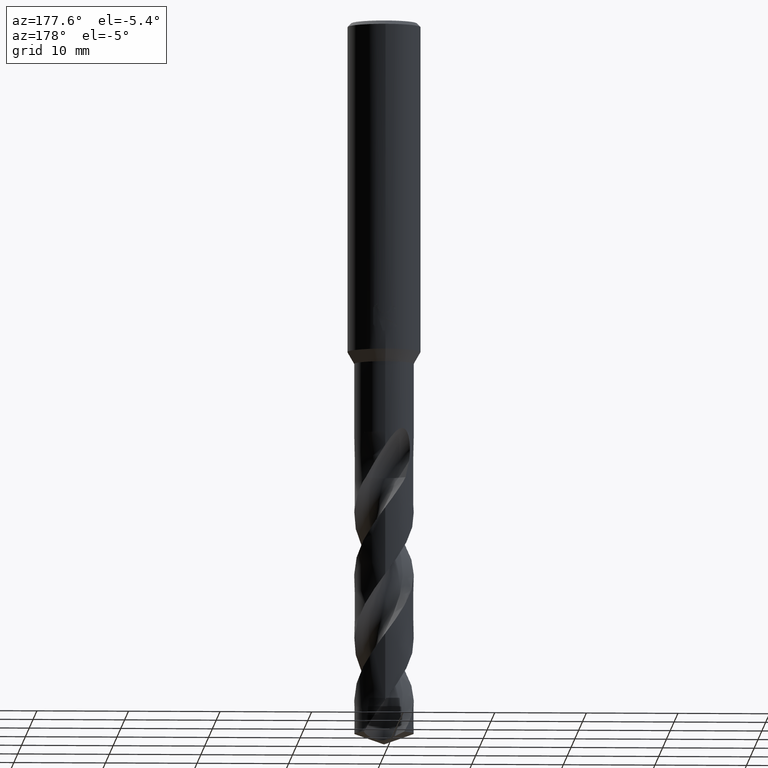
[diagram: clean part render]
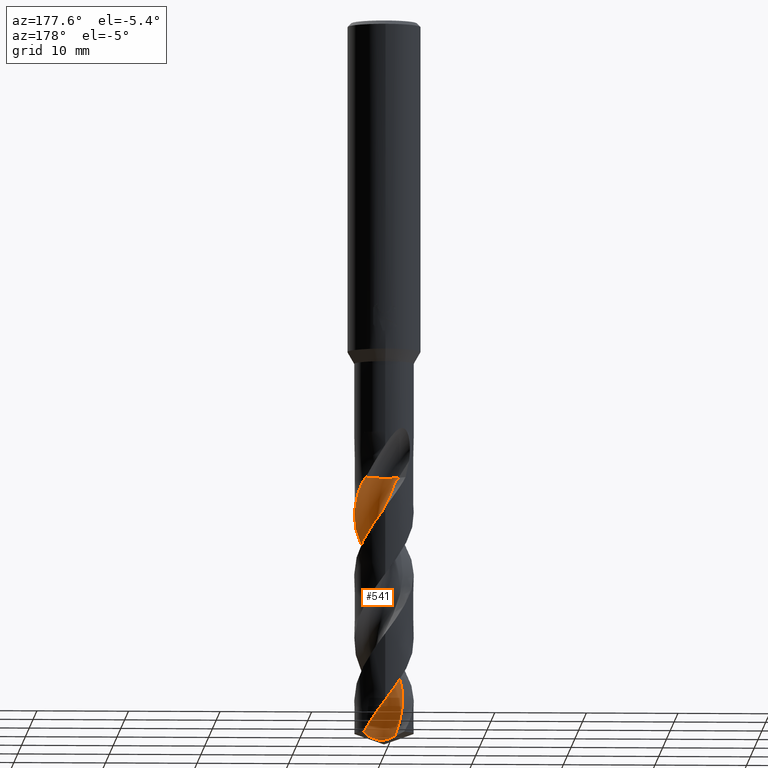
[diagram: same view with one face highlighted and labeled with its STEP entity id]
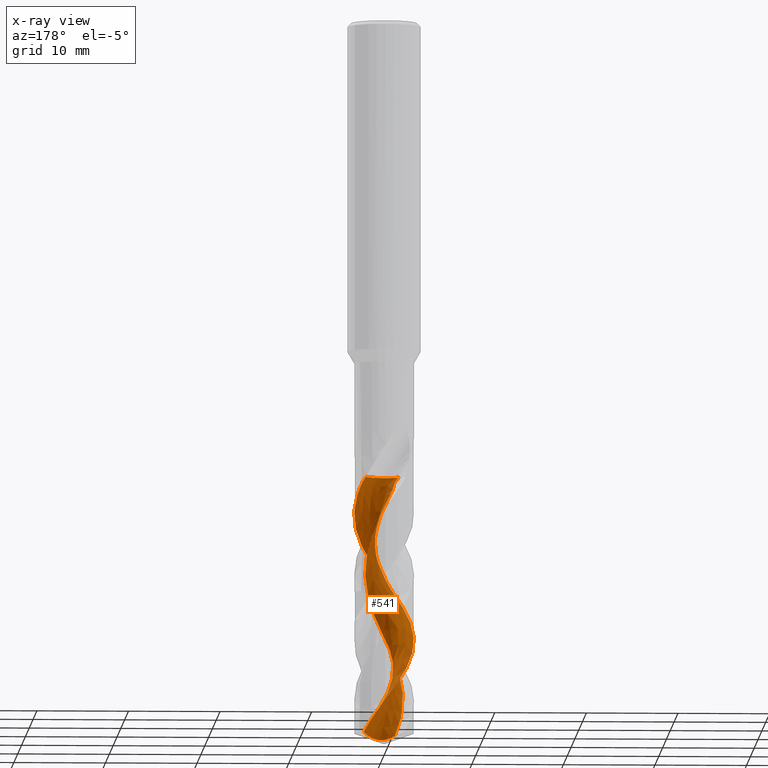
[diagram: x-ray of the same camera — body ghosted, the highlighted face saturated]
A machine part, auxiliary view. The second image highlights one B-rep face of the part: STEP entity #541.
The next image is the same camera in x-ray: the body ghosted, the highlighted face saturated — about 0% of this face is hidden behind the body in this view.
In plain terms, the highlighted face is a freeform B-spline surface patch.
Its self-contained STEP definition (entity closure, byte-faithful):
#351=EDGE_CURVE('',#619,#437,#852,.T.);
#353=EDGE_CURVE('',#633,#367,#854,.T.);
#365=EDGE_CURVE('',#473,#599,#866,.T.);
#367=VERTEX_POINT('',#868);
#429=VERTEX_POINT('',#933);
#437=VERTEX_POINT('',#941);
#473=VERTEX_POINT('',#982);
#497=VERTEX_POINT('',#1009);
#529=EDGE_CURVE('',#367,#619,#1044,.T.);
#541=ADVANCED_FACE('',(#1056),#1057,.F.);
#555=EDGE_CURVE('',#429,#633,#1073,.T.);
#599=VERTEX_POINT('',#1120);
#619=VERTEX_POINT('',#1142);
#633=VERTEX_POINT('',#1156);
#647=EDGE_CURVE('',#497,#473,#1170,.T.);
#713=EDGE_CURVE('',#599,#429,#1243,.T.);
#729=EDGE_CURVE('',#437,#497,#1261,.T.);
#852=CIRCLE('',#1743,2.16666667);
#854=B_SPLINE_CURVE_WITH_KNOTS('',3,(#1746,#1747,#1748,#1749,#1750,#1751,#1752,#1753,#1754,#1755,#1756,#1757,#1758,#1759,#1760,#1761,#1762,#1763,#1764,#1765,#1766,#1767,#1768,#1769,#1770,#1771,#1772,#1773,#1774,#1775,#1776,#1777,#1778,#1779,#1780,#1781,#1782,#1783,#1784,#1785,#1786,#1787,#1788,#1789,#1790,#1791,#1792,#1793,#1794,#1795,#1796,#1797,#1798,#1799,#1800,#1801,#1802,#1803,#1804,#1805,#1806,#1807,#1808,#1809,#1810,#1811,#1812,#1813,#1814,#1815,#1816,#1817,#1818,#1819,#1820,#1821,#1822,#1823),.UNSPECIFIED.,.F.,.F.,(4,2,2,2,2,2,2,2,2,2,2,2,2,2,2,2,2,2,2,2,2,2,2,2,2,2,2,2,2,2,2,2,2,2,2,2,2,2,4),(0.0,0.983665416882078,2.75910310560448,3.65809977348311,5.26265275473335,5.37314956139661,6.97835682773094,8.40005113678401,9.27804698981202,10.7147006107233,11.6196586660528,12.3349700130721,14.1330428596912,14.5902122730115,16.3844434175321,17.3244263969569,18.9360975183697,19.055251787107,20.6870175277749,22.1129067307252,23.0142932664634,24.4612426965239,25.3578445437601,26.0747161880654,27.8691787855185,28.3269785736588,31.3908081442947,31.6462387707913,32.2769354405363,32.9608347499522,33.4189616826828,33.644807162001,33.8778475340555,33.9319479964582,34.0005491272884,34.0628470322351,34.1439078440111,34.3098266905783,34.5597196612426),.UNSPECIFIED.);
#866=B_SPLINE_CURVE_WITH_KNOTS('',3,(#1853,#1854,#1855,#1856,#1857,#1858,#1859,#1860,#1861,#1862,#1863,#1864,#1865,#1866,#1867,#1868,#1869,#1870,#1871,#1872),.UNSPECIFIED.,.F.,.F.,(4,2,2,2,2,2,2,2,2,4),(0.0,1.33915142161195,2.26292007818916,3.15173346718818,4.20464172528486,5.42952985874342,6.8503262791546,8.47227691670221,9.70784520667199,10.9468086171318),.UNSPECIFIED.);
#868=CARTESIAN_POINT('',(2.07092301992372,2.50464074912461,-49.919));
#933=CARTESIAN_POINT('',(1.39556996721577E-012,3.24998955945595,-74.3908132981182));
#941=CARTESIAN_POINT('',(-1.53206469485717,1.60960197514284,-49.919));
#982=CARTESIAN_POINT('',(-1.20296613808762E-010,1.03396556153823,-78.6236673123438));
#1009=CARTESIAN_POINT('',(-1.0992320080945,1.73081066664617,-78.25372640096));
#1044=CIRCLE('',#2796,2.16666667);
#1056=FACE_OUTER_BOUND('',#2813,.T.);
#1057=B_SPLINE_SURFACE_WITH_KNOTS('',3,3,((#2814,#2815,#2816,#2817,#2818,#2819,#2820,#2821,#2822,#2823,#2824,#2825,#2826,#2827,#2828,#2829,#2830,#2831,#2832,#2833,#2834,#2835,#2836,#2837,#2838,#2839,#2840,#2841,#2842,#2843,#2844,#2845,#2846,#2847,#2848,#2849,#2850,#2851,#2852,#2853,#2854,#2855,#2856,#2857,#2858,#2859,#2860,#2861,#2862,#2863,#2864,#2865,#2866,#2867,#2868),(#2869,#2870,#2871,#2872,#2873,#2874,#2875,#2876,#2877,#2878,#2879,#2880,#2881,#2882,#2883,#2884,#2885,#2886,#2887,#2888,#2889,#2890,#2891,#2892,#2893,#2894,#2895,#2896,#2897,#2898,#2899,#2900,#2901,#2902,#2903,#2904,#2905,#2906,#2907,#2908,#2909,#2910,#2911,#2912,#2913,#2914,#2915,#2916,#2917,#2918,#2919,#2920,#2921,#2922,#2923),(#2924,#2925,#2926,#2927,#2928,#2929,#2930,#2931,#2932,#2933,#2934,#2935,#2936,#2937,#2938,#2939,#2940,#2941,#2942,#2943,#2944,#2945,#2946,#2947,#2948,#2949,#2950,#2951,#2952,#2953,#2954,#2955,#2956,#2957,#2958,#2959,#2960,#2961,#2962,#2963,#2964,#2965,#2966,#2967,#2968,#2969,#2970,#2971,#2972,#2973,#2974,#2975,#2976,#2977,#2978),(#2979,#2980,#2981,#2982,#2983,#2984,#2985,#2986,#2987,#2988,#2989,#2990,#2991,#2992,#2993,#2994,#2995,#2996,#2997,#2998,#2999,#3000,#3001,#3002,#3003,#3004,#3005,#3006,#3007,#3008,#3009,#3010,#3011,#3012,#3013,#3014,#3015,#3016,#3017,#3018,#3019,#3020,#3021,#3022,#3023,#3024,#3025,#3026,#3027,#3028,#3029,#3030,#3031,#3032,#3033),(#3034,#3035,#3036,#3037,#3038,#3039,#3040,#3041,#3042,#3043,#3044,#3045,#3046,#3047,#3048,#3049,#3050,#3051,#3052,#3053,#3054,#3055,#3056,#3057,#3058,#3059,#3060,#3061,#3062,#3063,#3064,#3065,#3066,#3067,#3068,#3069,#3070,#3071,#3072,#3073,#3074,#3075,#3076,#3077,#3078,#3079,#3080,#3081,#3082,#3083,#3084,#3085,#3086,#3087,#3088),(#3089,#3090,#3091,#3092,#3093,#3094,#3095,#3096,#3097,#3098,#3099,#3100,#3101,#3102,#3103,#3104,#3105,#3106,#3107,#3108,#3109,#3110,#3111,#3112,#3113,#3114,#3115,#3116,#3117,#3118,#3119,#3120,#3121,#3122,#3123,#3124,#3125,#3126,#3127,#3128,#3129,#3130,#3131,#3132,#3133,#3134,#3135,#3136,#3137,#3138,#3139,#3140,#3141,#3142,#3143),(#3144,#3145,#3146,#3147,#3148,#3149,#3150,#3151,#3152,#3153,#3154,#3155,#3156,#3157,#3158,#3159,#3160,#3161,#3162,#3163,#3164,#3165,#3166,#3167,#3168,#3169,#3170,#3171,#3172,#3173,#3174,#3175,#3176,#3177,#3178,#3179,#3180,#3181,#3182,#3183,#3184,#3185,#3186,#3187,#3188,#3189,#3190,#3191,#3192,#3193,#3194,#3195,#3196,#3197,#3198),(#3199,#3200,#3201,#3202,#3203,#3204,#3205,#3206,#3207,#3208,#3209,#3210,#3211,#3212,#3213,#3214,#3215,#3216,#3217,#3218,#3219,#3220,#3221,#3222,#3223,#3224,#3225,#3226,#3227,#3228,#3229,#3230,#3231,#3232,#3233,#3234,#3235,#3236,#3237,#3238,#3239,#3240,#3241,#3242,#3243,#3244,#3245,#3246,#3247,#3248,#3249,#3250,#3251,#3252,#3253),(#3254,#3255,#3256,#3257,#3258,#3259,#3260,#3261,#3262,#3263,#3264,#3265,#3266,#3267,#3268,#3269,#3270,#3271,#3272,#3273,#3274,#3275,#3276,#3277,#3278,#3279,#3280,#3281,#3282,#3283,#3284,#3285,#3286,#3287,#3288,#3289,#3290,#3291,#3292,#3293,#3294,#3295,#3296,#3297,#3298,#3299,#3300,#3301,#3302,#3303,#3304,#3305,#3306,#3307,#3308),(#3309,#3310,#3311,#3312,#3313,#3314,#3315,#3316,#3317,#3318,#3319,#3320,#3321,#3322,#3323,#3324,#3325,#3326,#3327,#3328,#3329,#3330,#3331,#3332,#3333,#3334,#3335,#3336,#3337,#3338,#3339,#3340,#3341,#3342,#3343,#3344,#3345,#3346,#3347,#3348,#3349,#3350,#3351,#3352,#3353,#3354,#3355,#3356,#3357,#3358,#3359,#3360,#3361,#3362,#3363),(#3364,#3365,#3366,#3367,#3368,#3369,#3370,#3371,#3372,#3373,#3374,#3375,#3376,#3377,#3378,#3379,#3380,#3381,#3382,#3383,#3384,#3385,#3386,#3387,#3388,#3389,#3390,#3391,#3392,#3393,#3394,#3395,#3396,#3397,#3398,#3399,#3400,#3401,#3402,#3403,#3404,#3405,#3406,#3407,#3408,#3409,#3410,#3411,#3412,#3413,#3414,#3415,#3416,#3417,#3418)),.UNSPECIFIED.,.F.,.F.,.F.,(4,1,1,1,1,1,1,1,4),(4,1,2,1,2,2,1,2,2,1,2,1,2,1,2,1,2,1,2,1,2,1,2,1,2,1,2,1,2,1,2,1,2,2,4),(-1.18667210492903E-017,0.392701483621127,0.785402967242254,1.17810445086338,1.57080593448451,1.96350741810564,2.35620890172676,2.74891038534789,3.14161186896902),(0.0,0.653598415044584,1.30719683008917,1.96079524513375,2.61439366017834,3.92159049026751,5.22878732035668,6.53598415044585,7.84318098053501,9.15037781062418,10.4575746407134,11.7647714708025,13.0719683008917,14.3791651309809,15.68636196107,16.9935587911592,18.3007556212484,19.6079524513375,20.9151492814267,22.2223461115159,23.529542941605,24.8367397716942,26.1439366017834,27.4511334318725,28.7583302619617,30.0655270920509,31.3727239221401,32.6799207522292,33.9871175823184,35.2943144124076,36.6015112424967,37.9087080725859,39.2159049026751,40.5231017327642,41.8302985628534),.UNSPECIFIED.);
#1073=B_SPLINE_CURVE_WITH_KNOTS('',3,(#4083,#4084,#4085,#4086,#4087,#4088,#4089,#4090,#4091,#4092,#4093,#4094,#4095,#4096,#4097,#4098,#4099,#4100,#4101,#4102,#4103,#4104,#4105,#4106,#4107,#4108,#4109,#4110,#4111,#4112,#4113,#4114,#4115,#4116,#4117,#4118,#4119,#4120,#4121,#4122,#4123,#4124,#4125,#4126,#4127,#4128,#4129,#4130,#4131,#4132,#4133,#4134,#4135,#4136,#4137,#4138,#4139,#4140,#4141,#4142,#4143,#4144,#4145,#4146,#4147,#4148,#4149,#4150,#4151,#4152,#4153,#4154,#4155,#4156,#4157,#4158,#4159,#4160),.UNSPECIFIED.,.F.,.F.,(4,2,2,2,2,2,2,2,2,2,2,2,2,2,2,2,2,2,2,2,2,2,2,2,2,2,2,2,2,2,2,2,2,2,2,2,2,2,4),(0.0,0.983665416882078,2.75910310560448,3.65809977348311,5.26265275473335,5.37314956139661,6.97835682773094,8.40005113678401,9.27804698981202,10.7147006107233,11.6196586660528,12.3349700130721,14.1330428596912,14.5902122730115,16.3844434175321,17.3244263969569,18.9360975183697,19.055251787107,20.6870175277749,22.1129067307252,23.0142932664634,24.4612426965239,25.3578445437601,26.0747161880654,27.8691787855185,28.3269785736588,31.3908081442947,31.6462387707913,32.2769354405363,32.9608347499522,33.4189616826828,33.644807162001,33.8778475340555,33.9319479964582,34.0005491272884,34.0628470322351,34.1439078440111,34.3098266905783,34.5597196612426),.UNSPECIFIED.);
#1120=CARTESIAN_POINT('',(2.28421874379141,2.31189202397343,-77.8170967386348));
#1142=CARTESIAN_POINT('',(-0.257342903857332,0.990324101710948,-49.919));
#1156=CARTESIAN_POINT('',(1.50950780938607E-010,-3.24994747932707,-60.5813366930118));
#1170=B_SPLINE_CURVE_WITH_KNOTS('',3,(#4514,#4515,#4516,#4517,#4518,#4519,#4520,#4521,#4522,#4523,#4524,#4525,#4526,#4527,#4528,#4529,#4530,#4531,#4532,#4533),.UNSPECIFIED.,.F.,.F.,(4,2,2,2,2,2,2,2,2,4),(0.0,1.33915142161195,2.26292007818916,3.15173346718818,4.20464172528486,5.42952985874342,6.8503262791546,8.47227691670221,9.70784520667199,10.9468086171318),.UNSPECIFIED.);
#1243=B_SPLINE_CURVE_WITH_KNOTS('',3,(#4944,#4945,#4946,#4947,#4948,#4949,#4950,#4951,#4952,#4953,#4954,#4955,#4956,#4957,#4958,#4959,#4960,#4961,#4962,#4963,#4964,#4965,#4966,#4967,#4968,#4969,#4970,#4971,#4972,#4973,#4974,#4975,#4976,#4977,#4978,#4979,#4980,#4981,#4982,#4983,#4984,#4985,#4986,#4987,#4988,#4989,#4990,#4991,#4992,#4993,#4994,#4995,#4996,#4997,#4998,#4999,#5000,#5001,#5002,#5003,#5004,#5005,#5006,#5007,#5008,#5009,#5010,#5011,#5012,#5013,#5014,#5015,#5016,#5017,#5018,#5019,#5020,#5021),.UNSPECIFIED.,.F.,.F.,(4,2,2,2,2,2,2,2,2,2,2,2,2,2,2,2,2,2,2,2,2,2,2,2,2,2,2,2,2,2,2,2,2,2,2,2,2,2,4),(0.0,0.983665416882078,2.75910310560448,3.65809977348311,5.26265275473335,5.37314956139661,6.97835682773094,8.40005113678401,9.27804698981202,10.7147006107233,11.6196586660528,12.3349700130721,14.1330428596912,14.5902122730115,16.3844434175321,17.3244263969569,18.9360975183697,19.055251787107,20.6870175277749,22.1129067307252,23.0142932664634,24.4612426965239,25.3578445437601,26.0747161880654,27.8691787855185,28.3269785736588,31.3908081442947,31.6462387707913,32.2769354405363,32.9608347499522,33.4189616826828,33.644807162001,33.8778475340555,33.9319479964582,34.0005491272884,34.0628470322351,34.1439078440111,34.3098266905783,34.5597196612426),.UNSPECIFIED.);
#1261=B_SPLINE_CURVE_WITH_KNOTS('',3,(#5065,#5066,#5067,#5068,#5069,#5070,#5071,#5072,#5073,#5074,#5075,#5076,#5077,#5078,#5079,#5080,#5081,#5082,#5083,#5084,#5085,#5086,#5087,#5088,#5089,#5090,#5091,#5092,#5093,#5094,#5095,#5096,#5097,#5098,#5099,#5100,#5101,#5102,#5103,#5104,#5105,#5106,#5107,#5108,#5109,#5110,#5111,#5112,#5113,#5114,#5115,#5116,#5117,#5118,#5119),.UNSPECIFIED.,.F.,.F.,(4,1,2,1,2,2,1,2,2,1,2,1,2,1,2,1,2,1,2,1,2,1,2,1,2,1,2,1,2,1,2,1,2,2,4),(0.0,0.653598415044584,1.30719683008917,1.96079524513375,2.61439366017834,3.92159049026751,5.22878732035668,6.53598415044585,7.84318098053501,9.15037781062418,10.4575746407134,11.7647714708025,13.0719683008917,14.3791651309809,15.68636196107,16.9935587911592,18.3007556212484,19.6079524513375,20.9151492814267,22.2223461115159,23.529542941605,24.8367397716942,26.1439366017834,27.4511334318725,28.7583302619617,30.0655270920509,31.3727239221401,32.6799207522292,33.9871175823184,35.2943144124076,36.6015112424967,37.9087080725859,39.2159049026751,40.5231017327642,41.8302985628534),.UNSPECIFIED.);
#1743=AXIS2_PLACEMENT_3D('',#5349,#5350,#5351);
#1746=CARTESIAN_POINT('',(2.28421874379143,2.31189202397343,-77.8170967386348));
#1747=CARTESIAN_POINT('',(2.14590276518028,2.44855123339847,-77.5530819647992));
#1748=CARTESIAN_POINT('',(1.99545838939112,2.57264800154993,-77.2894104769452));
#1749=CARTESIAN_POINT('',(1.54484739563324,2.8808561675093,-76.5501218561823));
#1750=CARTESIAN_POINT('',(1.22492480408191,3.03070040655266,-76.0838669346623));
#1751=CARTESIAN_POINT('',(0.716451751179353,3.17501424094617,-75.3676131188707));
#1752=CARTESIAN_POINT('',(0.541682498568522,3.20947791185344,-75.1251176574094));
#1753=CARTESIAN_POINT('',(0.04882101638487,3.26513441709336,-74.4541236833483));
#1754=CARTESIAN_POINT('',(-0.270093108556486,3.25420039107003,-74.0308232947192));
#1755=CARTESIAN_POINT('',(-0.603212290626786,3.1935915037027,-73.5705399360417));
#1756=CARTESIAN_POINT('',(-0.624592198046113,3.18947874006818,-73.5409002653958));
#1757=CARTESIAN_POINT('',(-0.956158451583376,3.12223587227196,-73.0808177550535));
#1758=CARTESIAN_POINT('',(-1.25601690323674,3.01426811157562,-72.6572665994122));
#1759=CARTESIAN_POINT('',(-1.78411354559443,2.73103309688866,-71.8483125002803));
#1760=CARTESIAN_POINT('',(-2.01363301381328,2.56649409830434,-71.4660110345702));
#1761=CARTESIAN_POINT('',(-2.34627151015276,2.25556909572054,-70.8514464427821));
#1762=CARTESIAN_POINT('',(-2.46351264429661,2.12688998765172,-70.6179629532851));
#1763=CARTESIAN_POINT('',(-2.74395229984116,1.76463157425572,-69.9993640146617));
#1764=CARTESIAN_POINT('',(-2.88769967282052,1.5180483272136,-69.6131660669389));
#1765=CARTESIAN_POINT('',(-3.06685542060761,1.09033920238705,-68.9874968532913));
#1766=CARTESIAN_POINT('',(-3.12226936465784,0.919676410715333,-68.7469040150886));
#1767=CARTESIAN_POINT('',(-3.19578684319758,0.607686530485753,-68.3137857986175));
#1768=CARTESIAN_POINT('',(-3.2191388929249,0.468250315155995,-68.1216847263187));
#1769=CARTESIAN_POINT('',(-3.26907893874983,-0.0237117549168886,-67.4503354717168));
#1770=CARTESIAN_POINT('',(-3.24712728454265,-0.379068083193536,-66.9796959065386));
#1771=CARTESIAN_POINT('',(-3.14823286558493,-0.811787948284176,-66.3782118076615));
#1772=CARTESIAN_POINT('',(-3.12459882107033,-0.898441784640264,-66.2558909699275));
#1773=CARTESIAN_POINT('',(-2.99087422939086,-1.31940815644719,-65.6560199549965));
#1774=CARTESIAN_POINT('',(-2.83053089017284,-1.63538271943371,-65.1874666672174));
#1775=CARTESIAN_POINT('',(-2.51339314748647,-2.06861303810501,-64.4602858473064));
#1776=CARTESIAN_POINT('',(-2.39177245236522,-2.20814264598366,-64.2087398275514));
#1777=CARTESIAN_POINT('',(-2.03061457373249,-2.55723991457581,-63.5298654490194));
#1778=CARTESIAN_POINT('',(-1.77191363696668,-2.74267808629556,-63.1076777429755));
#1779=CARTESIAN_POINT('',(-1.4705438809965,-2.89831769360856,-62.646265032537));
#1780=CARTESIAN_POINT('',(-1.44970239562173,-2.90879864731334,-62.6144959299604));
#1781=CARTESIAN_POINT('',(-1.14081081787012,-3.05997712321538,-62.1468048111924));
#1782=CARTESIAN_POINT('',(-0.833271887258044,-3.1577414479249,-61.718164945304));
#1783=CARTESIAN_POINT('',(-0.238092548507583,-3.25338309925119,-60.9041039747348));
#1784=CARTESIAN_POINT('',(0.0439367848343066,-3.26180085387165,-60.5222397702243));
#1785=CARTESIAN_POINT('',(0.500743492766916,-3.21605634804081,-59.9027652924042));
#1786=CARTESIAN_POINT('',(0.675845841733038,-3.18385490556788,-59.6640152294981));
#1787=CARTESIAN_POINT('',(1.12265763055415,-3.06318305186809,-59.0387007361528));
#1788=CARTESIAN_POINT('',(1.38704070785662,-2.95292801429162,-58.6513248311665));
#1789=CARTESIAN_POINT('',(1.78684933719647,-2.72040219913218,-58.027542804639));
#1790=CARTESIAN_POINT('',(1.93215750699758,-2.61917338017558,-57.790035989326));
#1791=CARTESIAN_POINT('',(2.17732605668553,-2.41687614246588,-57.3602012000474));
#1792=CARTESIAN_POINT('',(2.28003374551165,-2.32019728675168,-57.1682558325366));
#1793=CARTESIAN_POINT('',(2.61617444088352,-1.96000987931691,-56.4995897263264));
#1794=CARTESIAN_POINT('',(2.81297600492308,-1.66533890114712,-56.0311610260846));
#1795=CARTESIAN_POINT('',(2.99592026492056,-1.2627734266335,-55.4324773173598));
#1796=CARTESIAN_POINT('',(3.02964003628341,-1.17957172635793,-55.3104500805931));
#1797=CARTESIAN_POINT('',(3.26225544091535,-0.529585330352565,-54.3745091105727));
#1798=CARTESIAN_POINT('',(3.30331485715062,0.0794277238116095,-53.5861982975916));
#1799=CARTESIAN_POINT('',(3.17127972242247,0.712364496992292,-52.7060250584901));
#1800=CARTESIAN_POINT('',(3.16009711322813,0.760416345924511,-52.6385471009772));
#1801=CARTESIAN_POINT('',(3.11742740791528,0.926581034384211,-52.4045891237776));
#1802=CARTESIAN_POINT('',(3.08022544601935,1.04380250875006,-52.2384172414484));
#1803=CARTESIAN_POINT('',(2.98818811057587,1.2848077559531,-51.8937878422083));
#1804=CARTESIAN_POINT('',(2.93474434487216,1.40214380118168,-51.726675214645));
#1805=CARTESIAN_POINT('',(2.83389504099348,1.59327711230693,-51.4381877584529));
#1806=CARTESIAN_POINT('',(2.7910862813486,1.66697078480488,-51.322147063458));
#1807=CARTESIAN_POINT('',(2.72440227469838,1.77237130923843,-51.1460570180033));
#1808=CARTESIAN_POINT('',(2.70200612416793,1.80630641295292,-51.0876398901185));
#1809=CARTESIAN_POINT('',(2.65587193564315,1.87350634340256,-50.967988880239));
#1810=CARTESIAN_POINT('',(2.63217986079799,1.90662009128798,-50.906893904255));
#1811=CARTESIAN_POINT('',(2.60274109998404,1.94622473260338,-50.8309092285958));
#1812=CARTESIAN_POINT('',(2.59507920152387,1.95649178034349,-50.8110070808922));
#1813=CARTESIAN_POINT('',(2.57005268842107,1.98930272762759,-50.7489370767954));
#1814=CARTESIAN_POINT('',(2.55560418578719,2.00784115994499,-50.714581928386));
#1815=CARTESIAN_POINT('',(2.52705492438188,2.04363158850693,-50.6495788685276));
#1816=CARTESIAN_POINT('',(2.51306843504364,2.06081461628714,-50.6189358564029));
#1817=CARTESIAN_POINT('',(2.47988499293683,2.10071210175514,-50.5490186579647));
#1818=CARTESIAN_POINT('',(2.46042562938065,2.12348814068093,-50.5100049866753));
#1819=CARTESIAN_POINT('',(2.39882581397079,2.19351709310917,-50.392530046746));
#1820=CARTESIAN_POINT('',(2.35451206584009,2.24116081546007,-50.3159935707397));
#1821=CARTESIAN_POINT('',(2.23513107904287,2.36146464429363,-50.1288839509975));
#1822=CARTESIAN_POINT('',(2.15669773820355,2.43371967258387,-50.0220319642342));
#1823=CARTESIAN_POINT('',(2.07092301992372,2.50464074912461,-49.919));
#1853=CARTESIAN_POINT('',(-1.09923200809432,1.73081066664621,-78.2537264009602));
#1854=CARTESIAN_POINT('',(-0.785569059866933,1.44958876801182,-78.4013350117243));
#1855=CARTESIAN_POINT('',(-0.440497454497932,1.23535585018061,-78.5337738098818));
#1856=CARTESIAN_POINT('',(0.0693412229714789,0.997804930670794,-78.6428862296801));
#1857=CARTESIAN_POINT('',(0.255247673619302,0.934715561983207,-78.6533598855566));
#1858=CARTESIAN_POINT('',(0.611162249301695,0.866639430161781,-78.6191091893074));
#1859=CARTESIAN_POINT('',(0.775740033698854,0.862557372251177,-78.5790756161067));
#1860=CARTESIAN_POINT('',(1.11374364618973,0.908551468602808,-78.4783404758813));
#1861=CARTESIAN_POINT('',(1.28731394881608,0.969031761855234,-78.413593174877));
#1862=CARTESIAN_POINT('',(1.62981151969414,1.16444874267994,-78.2710006426903));
#1863=CARTESIAN_POINT('',(1.78950980185454,1.30752576678248,-78.193577309406));
#1864=CARTESIAN_POINT('',(2.07094129075275,1.67221946766356,-78.03146077966));
#1865=CARTESIAN_POINT('',(2.17968714371792,1.89908531464617,-77.9488403459926));
#1866=CARTESIAN_POINT('',(2.32030400642525,2.41669039047378,-77.7817971136887));
#1867=CARTESIAN_POINT('',(2.33823367443138,2.70803966155811,-77.6998819757272));
#1868=CARTESIAN_POINT('',(2.27724841857773,3.21623013461788,-77.566769338236));
#1869=CARTESIAN_POINT('',(2.22059720307694,3.43277358330425,-77.5133424382683));
#1870=CARTESIAN_POINT('',(2.05269522998074,3.84744606126679,-77.414122982157));
#1871=CARTESIAN_POINT('',(1.9416696211925,4.04462098514914,-77.3685741093025));
#1872=CARTESIAN_POINT('',(1.80727842785409,4.22596080012736,-77.327122164802));
#2796=AXIS2_PLACEMENT_3D('',#5549,#5550,#5551);
#2813=EDGE_LOOP('',(#5558,#5559,#5560,#5561,#5562,#5563,#5564,#5565));
#2814=CARTESIAN_POINT('',(1.53206469485717,4.67373136485716,-49.919));
#2815=CARTESIAN_POINT('',(1.6887520665894,4.6632718368513,-50.0702018149478));
#2816=CARTESIAN_POINT('',(2.00573923403551,4.60934911632582,-50.3750766068162));
#2817=CARTESIAN_POINT('',(2.31915791764698,4.467534004625,-50.6809269484319));
#2818=CARTESIAN_POINT('',(2.61886591431917,4.2723681649107,-50.9820475320066));
#2819=CARTESIAN_POINT('',(2.90681899719111,4.0680655264808,-51.2822728877756));
#2820=CARTESIAN_POINT('',(3.17561396166763,3.85123254426638,-51.5844678286628));
#2821=CARTESIAN_POINT('',(3.56582587635674,3.51930305403679,-52.0413729515201));
#2822=CARTESIAN_POINT('',(3.80255245782062,3.26841385271214,-52.345638367814));
#2823=CARTESIAN_POINT('',(4.21201672921246,2.7116042084234,-52.9499981062886));
#2824=CARTESIAN_POINT('',(4.56625346888715,2.11599996439235,-53.5555471469807));
#2825=CARTESIAN_POINT('',(4.79241489214949,1.46208542832959,-54.1623594889616));
#2826=CARTESIAN_POINT('',(4.94717823604264,0.790374736990876,-54.7680266877876));
#2827=CARTESIAN_POINT('',(4.99049532119078,0.446824163591461,-55.0710246471443));
#2828=CARTESIAN_POINT('',(5.00227327300685,-0.243111825111809,-55.6771153549293));
#2829=CARTESIAN_POINT('',(4.94594815513601,-0.932479016280701,-56.2828889586497));
#2830=CARTESIAN_POINT('',(4.75044771037607,-1.5965091595028,-56.8892696195738));
#2831=CARTESIAN_POINT('',(4.48327828836684,-2.23303708954346,-57.4951816662666));
#2832=CARTESIAN_POINT('',(4.15405643467103,-2.84156103626781,-58.1007490417934));
#2833=CARTESIAN_POINT('',(3.70803273967737,-3.37103374738505,-58.707075560638));
#2834=CARTESIAN_POINT('',(3.2076784065435,-3.84660441112786,-59.3130865221495));
#2835=CARTESIAN_POINT('',(2.66172846813952,-4.27156312052366,-59.918738065844));
#2836=CARTESIAN_POINT('',(2.04053993586026,-4.5771085260959,-60.525076232623));
#2837=CARTESIAN_POINT('',(1.39124130710468,-4.8114537006872,-61.1310513916216));
#2838=CARTESIAN_POINT('',(0.720530715778663,-4.9811499047368,-61.7366763866909));
#2839=CARTESIAN_POINT('',(0.0289096369438015,-5.01128301896902,-62.3430126133521));
#2840=CARTESIAN_POINT('',(-0.659833292804898,-4.96491258947965,-62.9489980502151));
#2841=CARTESIAN_POINT('',(-1.34219489760256,-4.85073278566852,-63.5546298959818));
#2842=CARTESIAN_POINT('',(-1.98760586050016,-4.60035287253945,-64.1609662357426));
#2843=CARTESIAN_POINT('',(-2.59963574235914,-4.28108189433547,-64.7669492493008));
#2844=CARTESIAN_POINT('',(-3.17857122988984,-3.9022842693255,-65.3725797191295));
#2845=CARTESIAN_POINT('',(-3.66893233519541,-3.41361911537106,-65.9789160077837));
#2846=CARTESIAN_POINT('',(-4.10103711408609,-2.8752858269582,-66.5848990648571));
#2847=CARTESIAN_POINT('',(-4.47891305649956,-2.29574686778747,-67.1905296336224));
#2848=CARTESIAN_POINT('',(-4.73152661123082,-1.65120544831446,-67.7968674547562));
#2849=CARTESIAN_POINT('',(-4.91083419248464,-0.984598871543489,-68.4028533355948));
#2850=CARTESIAN_POINT('',(-5.02392354158776,-0.302056449062995,-69.0084847988412));
#2851=CARTESIAN_POINT('',(-4.99619006196736,0.389663886138344,-69.6148172996849));
#2852=CARTESIAN_POINT('',(-4.89246768727597,1.07212882815886,-70.2207939750582));
#2853=CARTESIAN_POINT('',(-4.72170689291354,1.74257605602872,-70.8264235721218));
#2854=CARTESIAN_POINT('',(-4.41829246167464,2.36482276343623,-71.4327750625661));
#2855=CARTESIAN_POINT('',(-4.04900137545522,2.94803848849446,-72.0387830013129));
#2856=CARTESIAN_POINT('',(-3.62317068207859,3.4932930686133,-72.6444186065122));
#2857=CARTESIAN_POINT('',(-3.09532248765125,3.94115846529905,-73.2507110738246));
#2858=CARTESIAN_POINT('',(-2.52288210278261,4.32688910098702,-73.8566237559692));
#2859=CARTESIAN_POINT('',(-1.91381754831942,4.65513215335986,-74.4622394283148));
#2860=CARTESIAN_POINT('',(-1.25023884804896,4.85282989649626,-75.0686960753365));
#2861=CARTESIAN_POINT('',(-0.570735753534192,4.97538661187915,-75.6748755139252));
#2862=CARTESIAN_POINT('',(0.118835069744435,5.03085007546555,-76.2805877084358));
#2863=CARTESIAN_POINT('',(0.805518464808844,4.94642389706902,-76.8867410109703));
#2864=CARTESIAN_POINT('',(1.47668579502198,4.78781131407269,-77.4923851523161));
#2865=CARTESIAN_POINT('',(1.80384958154224,4.67439571415173,-77.7952265562217));
#2866=CARTESIAN_POINT('',(2.42731491803244,4.37930983306105,-78.4009919081959));
#2867=CARTESIAN_POINT('',(2.72356899317961,4.2034288636256,-78.7033653767676));
#2868=CARTESIAN_POINT('',(3.00048862046659,4.00243687364435,-79.0062182924429));
#2869=CARTESIAN_POINT('',(1.73260462024591,4.47317523827306,-49.9189999999999));
#2870=CARTESIAN_POINT('',(1.88908820258317,4.46251193733657,-50.0701958969636));
#2871=CARTESIAN_POINT('',(2.20147775370974,4.40385212409196,-50.3753417512818));
#2872=CARTESIAN_POINT('',(2.50081948378645,4.24937232484779,-50.6815543946709));
#2873=CARTESIAN_POINT('',(2.78059919302442,4.039048821707,-50.9823961823368));
#2874=CARTESIAN_POINT('',(3.0492190313465,3.82210324787299,-51.2822345474741));
#2875=CARTESIAN_POINT('',(3.30058761006045,3.59647436199806,-51.5843281060756));
#2876=CARTESIAN_POINT('',(3.66617998794016,3.25342267378121,-52.0415767158069));
#2877=CARTESIAN_POINT('',(3.88487827577939,2.99626417296994,-52.3460154539721));
#2878=CARTESIAN_POINT('',(4.25513829492572,2.43056426081086,-52.9501468141779));
#2879=CARTESIAN_POINT('',(4.57034781888765,1.83042593241582,-53.5556374164627));
#2880=CARTESIAN_POINT('',(4.75765206430029,1.17992329891414,-54.1625643943406));
#2881=CARTESIAN_POINT('',(4.8738984032572,0.515686135837431,-54.7681874180484));
#2882=CARTESIAN_POINT('',(4.89848953560655,0.177817962695735,-55.0711862874678));
#2883=CARTESIAN_POINT('',(4.87386003688734,-0.49676366425508,-55.677291939817));
#2884=CARTESIAN_POINT('',(4.78345394651245,-1.16732739815103,-56.2830363561156));
#2885=CARTESIAN_POINT('',(4.5582637813359,-1.80602879329401,-56.8894721500211));
#2886=CARTESIAN_POINT('',(4.26378177534285,-2.41374193456685,-57.4953742269166));
#2887=CARTESIAN_POINT('',(3.91084291359109,-2.99125449331884,-58.100883737137));
#2888=CARTESIAN_POINT('',(3.44782754611045,-3.48560085775489,-58.707257917451));
#2889=CARTESIAN_POINT('',(2.93406173827398,-3.9238449397442,-59.3132726682961));
#2890=CARTESIAN_POINT('',(2.37886167604843,-4.31089518977544,-59.9188780553585));
#2891=CARTESIAN_POINT('',(1.75622960564775,-4.57744345319901,-60.5252654896667));
#2892=CARTESIAN_POINT('',(1.10965206792102,-4.77221348692613,-61.1312394531001));
#2893=CARTESIAN_POINT('',(0.445707617399922,-4.90347845904,-61.7368145989115));
#2894=CARTESIAN_POINT('',(-0.231562524748906,-4.89732367661966,-62.3431998359826));
#2895=CARTESIAN_POINT('',(-0.901908260449627,-4.81580857679765,-62.9491854957476));
#2896=CARTESIAN_POINT('',(-1.56262805371909,-4.66915673493329,-63.5547684667733));
#2897=CARTESIAN_POINT('',(-2.18031331145006,-4.39131624427046,-64.1611537987815));
#2898=CARTESIAN_POINT('',(-2.76137252959056,-4.04725824248792,-64.7671367312845));
#2899=CARTESIAN_POINT('',(-3.30744053619083,-3.64742483207798,-65.3727180993956));
#2900=CARTESIAN_POINT('',(-3.76137702566352,-3.14475769964408,-65.9791033752924));
#2901=CARTESIAN_POINT('',(-4.15516000095454,-2.5961747148893,-66.5850863918381));
#2902=CARTESIAN_POINT('',(-4.49448511318431,-2.01058350100012,-67.190667881714));
#2903=CARTESIAN_POINT('',(-4.70811795189504,-1.36786023140337,-67.7970549513961));
#2904=CARTESIAN_POINT('',(-4.84821576914547,-0.707270130957733,-68.4030410348729));
#2905=CARTESIAN_POINT('',(-4.92357240478894,-0.034679775398805,-69.0086234730428));
#2906=CARTESIAN_POINT('',(-4.86087607501991,0.639709054629876,-69.6150044544206));
#2907=CARTESIAN_POINT('',(-4.72366876821607,1.30090647363692,-70.2209804002965));
#2908=CARTESIAN_POINT('',(-4.52235710471972,1.94707621465439,-70.826561192203));
#2909=CARTESIAN_POINT('',(-4.19389215651854,2.53939953363234,-71.4329636774852));
#2910=CARTESIAN_POINT('',(-3.80248524316924,3.08967944558772,-72.0389741694728));
#2911=CARTESIAN_POINT('',(-3.35843796790944,3.60042356458336,-72.6445598266149));
#2912=CARTESIAN_POINT('',(-2.81968219290431,4.01083304937126,-73.2508955999117));
#2913=CARTESIAN_POINT('',(-2.24022937276789,4.35753826098722,-73.8568014734142));
#2914=CARTESIAN_POINT('',(-1.62834667756306,4.6468590797531,-74.4623717287073));
#2915=CARTESIAN_POINT('',(-0.969840042145757,4.80581511299226,-75.0688920781497));
#2916=CARTESIAN_POINT('',(-0.299631655932815,4.88973463874802,-75.6750862687962));
#2917=CARTESIAN_POINT('',(0.376851865205545,4.90844810651198,-76.2807378561298));
#2918=CARTESIAN_POINT('',(1.04343393247318,4.79078320745753,-76.8869134768452));
#2919=CARTESIAN_POINT('',(1.69077789499502,4.60074930867953,-77.4925412855555));
#2920=CARTESIAN_POINT('',(2.00450770031931,4.47298008886399,-77.7953932075342));
#2921=CARTESIAN_POINT('',(2.59800765085573,4.1519428861364,-78.4011955612359));
#2922=CARTESIAN_POINT('',(2.87853693596979,3.96516183768137,-78.7035189264896));
#2923=CARTESIAN_POINT('',(3.13920111774695,3.75505490983923,-79.0063876074135));
#2924=CARTESIAN_POINT('',(2.05384605606107,3.99239995741634,-49.9190000000001));
#2925=CARTESIAN_POINT('',(2.2098411124425,3.98141023609571,-50.0701861638417));
#2926=CARTESIAN_POINT('',(2.5111535922316,3.91510656559334,-50.3757778290092));
#2927=CARTESIAN_POINT('',(2.77731131476082,3.74090020779279,-50.6825863409401));
#2928=CARTESIAN_POINT('',(3.01121498084638,3.50819278614158,-50.9829696008016));
#2929=CARTESIAN_POINT('',(3.23614875908028,3.27365499341076,-51.2821714897239));
#2930=CARTESIAN_POINT('',(3.44917411532467,3.03736777800158,-51.5840983070983));
#2931=CARTESIAN_POINT('',(3.76111489534884,2.68186670307259,-52.0419118430572));
#2932=CARTESIAN_POINT('',(3.94127113179296,2.41934127575982,-52.3466356441973));
#2933=CARTESIAN_POINT('',(4.22960380101661,1.85145483289237,-52.9503913859545));
#2934=CARTESIAN_POINT('',(4.46497228766642,1.25776996953342,-53.555785877055));
#2935=CARTESIAN_POINT('',(4.57593533408411,0.62954175807485,-54.1629014099019));
#2936=CARTESIAN_POINT('',(4.61813582155204,-0.00443464143501685,-54.7684517554493));
#2937=CARTESIAN_POINT('',(4.60754263696906,-0.323493773464377,-55.0714521344448));
#2938=CARTESIAN_POINT('',(4.51621942633923,-0.952895219656077,-55.6775823644675));
#2939=CARTESIAN_POINT('',(4.36514321698113,-1.57230717011466,-56.2832787726188));
#2940=CARTESIAN_POINT('',(4.09065842838063,-2.14855521644392,-56.8898052578876));
#2941=CARTESIAN_POINT('',(3.75302135198891,-2.68778968260909,-57.4956909167628));
#2942=CARTESIAN_POINT('',(3.36499059811707,-3.1938611070714,-58.1011052798964));
#2943=CARTESIAN_POINT('',(2.88196751670661,-3.61121260551913,-58.7075578216424));
#2944=CARTESIAN_POINT('',(2.35622782279671,-3.96948597645221,-59.3135788328861));
#2945=CARTESIAN_POINT('',(1.79760626822206,-4.27705683327516,-59.9191082967761));
#2946=CARTESIAN_POINT('',(1.18759547270767,-4.46505318069059,-60.5255767350825));
#2947=CARTESIAN_POINT('',(0.562196565863541,-4.58177168614155,-61.1315487752243));
#2948=CARTESIAN_POINT('',(-0.0729357009635921,-4.63888101844523,-61.7370419203307));
#2949=CARTESIAN_POINT('',(-0.707079654171297,-4.56587259290388,-62.3435077218496));
#2950=CARTESIAN_POINT('',(-1.32666296743768,-4.42139881715517,-62.9494938184293));
#2951=CARTESIAN_POINT('',(-1.93119528604794,-4.21842277547695,-63.554996338903));
#2952=CARTESIAN_POINT('',(-2.48252072728683,-3.89669820254028,-64.1614623089857));
#2953=CARTESIAN_POINT('',(-2.99179476436337,-3.51539248119064,-64.7674450494557));
#2954=CARTESIAN_POINT('',(-3.46377645775002,-3.08656660942261,-65.3729456816355));
#2955=CARTESIAN_POINT('',(-3.83931097663018,-2.57038615199057,-65.9794115814277));
#2956=CARTESIAN_POINT('',(-4.15239054997656,-2.0165472845341,-66.585394437582));
#2957=CARTESIAN_POINT('',(-4.41222346015432,-1.43418441742894,-67.1908953150703));
#2958=CARTESIAN_POINT('',(-4.54863431477401,-0.810597873523175,-67.7973632504308));
#2959=CARTESIAN_POINT('',(-4.612721619537,-0.177630519809029,-68.4033498123567));
#2960=CARTESIAN_POINT('',(-4.61658634033604,0.460054944991233,-69.0088514963595));
#2961=CARTESIAN_POINT('',(-4.49087108836813,1.08588460680208,-69.6153122934026));
#2962=CARTESIAN_POINT('',(-4.29516539980945,1.69124018768108,-70.2212869801444));
#2963=CARTESIAN_POINT('',(-4.04241911749662,2.27671617495945,-70.8267875343344));
#2964=CARTESIAN_POINT('',(-3.67576313833731,2.79924365612007,-71.4332739152275));
#2965=CARTESIAN_POINT('',(-3.25323126163275,3.27487112484563,-72.039288552676));
#2966=CARTESIAN_POINT('',(-2.78648207835677,3.70936477675693,-72.6447921000879));
#2967=CARTESIAN_POINT('',(-2.24081060749774,4.04054066766185,-73.2511990891285));
#2968=CARTESIAN_POINT('',(-1.66285484474315,4.30642285686551,-73.857093758245));
#2969=CARTESIAN_POINT('',(-1.06081506867282,4.51679493805704,-74.4625893219263));
#2970=CARTESIAN_POINT('',(-0.427856577996506,4.60030083178335,-75.0692144395892));
#2971=CARTESIAN_POINT('',(0.208401698190993,4.61065841564481,-75.6754328928471));
#2972=CARTESIAN_POINT('',(0.844101944871081,4.56109172457891,-76.2809847825741));
#2973=CARTESIAN_POINT('',(1.45727199094482,4.38495695260511,-76.887197163965));
#2974=CARTESIAN_POINT('',(2.04448411686632,4.14156735044779,-77.4927980382468));
#2975=CARTESIAN_POINT('',(2.32564370601112,3.99043915844671,-77.7956673429757));
#2976=CARTESIAN_POINT('',(2.84890560029107,3.62942635236218,-78.4015304573025));
#2977=CARTESIAN_POINT('',(3.09365735556209,3.42710294768604,-78.7037715127861));
#2978=CARTESIAN_POINT('',(3.31819280504043,3.20523418532767,-79.0066660760449));
#2979=CARTESIAN_POINT('',(2.22307462203598,3.1416680564548,-49.919));
#2980=CARTESIAN_POINT('',(2.3782052304885,3.13050637897576,-50.0701800874867));
#2981=CARTESIAN_POINT('',(2.65977763408718,3.05996775257462,-50.3760500548551));
#2982=CARTESIAN_POINT('',(2.86862142947473,2.87746998557184,-50.6832305436252));
#2983=CARTESIAN_POINT('',(3.02609370059208,2.64007594676539,-50.9833275626645));
#2984=CARTESIAN_POINT('',(3.18038231551433,2.40623508943703,-51.282132125865));
#2985=CARTESIAN_POINT('',(3.33414822610746,2.17718701354219,-51.583954851933));
#2986=CARTESIAN_POINT('',(3.56458483899177,1.83523084089793,-52.0421210513393));
#2987=CARTESIAN_POINT('',(3.68824367199583,1.58739190742679,-52.3470228024505));
#2988=CARTESIAN_POINT('',(3.86177516960378,1.06350614208535,-52.9505440637906));
#2989=CARTESIAN_POINT('',(3.99019400294428,0.524598335631395,-53.5558785574155));
#2990=CARTESIAN_POINT('',(4.00813993338035,-0.0289352402400702,-54.1631117888362));
#2991=CARTESIAN_POINT('',(3.96508911873481,-0.578465946041579,-54.7686167769493));
#2992=CARTESIAN_POINT('',(3.91653020466366,-0.851259347125519,-55.0716180929695));
#2993=CARTESIAN_POINT('',(3.75870979713747,-1.37975837810189,-55.677763663917));
#2994=CARTESIAN_POINT('',(3.55291270733664,-1.89344948385859,-56.2834301064004));
#2995=CARTESIAN_POINT('',(3.24596035774014,-2.35484370721639,-56.8900131988275));
#2996=CARTESIAN_POINT('',(2.88782363689583,-2.77439799415121,-57.4958886183629));
#2997=CARTESIAN_POINT('',(2.49216892583455,-3.16131214042666,-58.1012435693244));
#2998=CARTESIAN_POINT('',(2.02561556319986,-3.46046844862901,-58.7077450564618));
#2999=CARTESIAN_POINT('',(1.52918829963873,-3.70103412599844,-59.3137699423979));
#3000=CARTESIAN_POINT('',(1.01145021724009,-3.89648772410728,-59.919252023906));
#3001=CARTESIAN_POINT('',(0.464024557732097,-3.98286166689045,-60.5257710563977));
#3002=CARTESIAN_POINT('',(-0.0872164579398753,-4.00356362751495,-61.1317418492361));
#3003=CARTESIAN_POINT('',(-0.639847647474945,-3.97443794401362,-61.7371838297891));
#3004=CARTESIAN_POINT('',(-1.17584410631247,-3.83353152288939,-62.3436999422273));
#3005=CARTESIAN_POINT('',(-1.68893249288622,-3.63094158156825,-62.9496862722346));
#3006=CARTESIAN_POINT('',(-2.18325959392558,-3.38215857256122,-63.5551386113692));
#3007=CARTESIAN_POINT('',(-2.61742303859195,-3.03770760184424,-64.1616548769583));
#3008=CARTESIAN_POINT('',(-3.00582544662129,-2.64598755001992,-64.7676375425888));
#3009=CARTESIAN_POINT('',(-3.35848522508314,-2.21950957401854,-65.3730877517253));
#3010=CARTESIAN_POINT('',(-3.61760252895728,-1.72960738381546,-65.9796039602662));
#3011=CARTESIAN_POINT('',(-3.81581542328315,-1.21481224697805,-66.5855867599639));
#3012=CARTESIAN_POINT('',(-3.96733070209698,-0.682556439482051,-67.191037262872));
#3013=CARTESIAN_POINT('',(-4.00770253550573,-0.12982158779878,-67.7975557466242));
#3014=CARTESIAN_POINT('',(-3.98230129682537,0.421228456647651,-68.4035425321942));
#3015=CARTESIAN_POINT('',(-3.9071202496632,0.969497844206642,-69.0089938653594));
#3016=CARTESIAN_POINT('',(-3.72194054500668,1.4918516231365,-69.6155044559351));
#3017=CARTESIAN_POINT('',(-3.47721613890558,1.98623296984778,-70.2214783745435));
#3018=CARTESIAN_POINT('',(-3.1880264205939,2.4580652423359,-70.8269288361527));
#3019=CARTESIAN_POINT('',(-2.80850668022847,2.86193671880293,-71.4334675641373));
#3020=CARTESIAN_POINT('',(-2.38569214086561,3.21623353835991,-72.0394848294626));
#3021=CARTESIAN_POINT('',(-1.93125150165706,3.53201700458336,-72.6449370856667));
#3022=CARTESIAN_POINT('',(-1.42147955199317,3.74941047260875,-73.2513885519982));
#3023=CARTESIAN_POINT('',(-0.891995339326281,3.90413676925935,-73.8572762131131));
#3024=CARTESIAN_POINT('',(-0.348917988884565,4.01074152242215,-74.4627251568153));
#3025=CARTESIAN_POINT('',(0.205320181536824,4.0043445625034,-75.0694156832194));
#3026=CARTESIAN_POINT('',(0.752297447122444,3.93223937331855,-75.6756492699117));
#3027=CARTESIAN_POINT('',(1.29227829250477,3.81145272928118,-76.2811389356595));
#3028=CARTESIAN_POINT('',(1.79785807344258,3.58494394360918,-76.8873742510874));
#3029=CARTESIAN_POINT('',(2.271102484457,3.30212578629906,-77.4929583259275));
#3030=CARTESIAN_POINT('',(2.49371264943299,3.13732063081728,-77.7958384446679));
#3031=CARTESIAN_POINT('',(2.89668122986846,2.76122466713556,-78.4017395494429));
#3032=CARTESIAN_POINT('',(3.08292553377767,2.55789883637681,-78.7039291789803));
#3033=CARTESIAN_POINT('',(3.25063707734025,2.34046874412925,-79.0068399128006));
#3034=CARTESIAN_POINT('',(2.05385838317459,2.29093370346194,-49.919));
#3035=CARTESIAN_POINT('',(2.20812454237727,2.27994397068587,-50.0701834622153));
#3036=CARTESIAN_POINT('',(2.46983879617597,2.21304707690211,-50.3758988821687));
#3037=CARTESIAN_POINT('',(2.62255980636479,2.04482163624161,-50.6828728058466));
#3038=CARTESIAN_POINT('',(2.70762429533942,1.8323472943885,-50.9831287791076));
#3039=CARTESIAN_POINT('',(2.79691157750102,1.62618551160648,-51.2821539853976));
#3040=CARTESIAN_POINT('',(2.89869944739293,1.42650314344994,-51.5840345157343));
#3041=CARTESIAN_POINT('',(3.05901949907534,1.12825133391162,-52.0420048731858));
#3042=CARTESIAN_POINT('',(3.13610225010812,0.915601303074932,-52.3468078073394));
#3043=CARTESIAN_POINT('',(3.22040951230258,0.476299899148577,-52.9504592774929));
#3044=CARTESIAN_POINT('',(3.27098226898355,0.0289275527053402,-53.5558270913584));
#3045=CARTESIAN_POINT('',(3.23157625718819,-0.420001043006234,-54.16299496042));
#3046=CARTESIAN_POINT('',(3.14207971179073,-0.85888968725497,-54.7685251382526));
#3047=CARTESIAN_POINT('',(3.07615030143822,-1.07441022331386,-55.0715259361226));
#3048=CARTESIAN_POINT('',(2.89550844473277,-1.48424017382926,-55.6776629817033));
#3049=CARTESIAN_POINT('',(2.6796137458049,-1.87931711463472,-56.2833460732003));
#3050=CARTESIAN_POINT('',(2.38661819434679,-2.2221755451634,-56.8898977175873));
#3051=CARTESIAN_POINT('',(2.05534215364867,-2.52331493815918,-57.4957788384616));
#3052=CARTESIAN_POINT('',(1.69824363759028,-2.79722456754084,-58.1011667690431));
#3053=CARTESIAN_POINT('',(1.29213786357615,-2.99348563848173,-58.7076410847218));
#3054=CARTESIAN_POINT('',(0.867836741640557,-3.13652113035387,-59.3136638122217));
#3055=CARTESIAN_POINT('',(0.430775738614838,-3.24403746277672,-59.9191722052371));
#3056=CARTESIAN_POINT('',(-0.0199394785422533,-3.26047509552045,-60.5256631578268));
#3057=CARTESIAN_POINT('',(-0.46592346030478,-3.22084856369882,-61.1316346197012));
#3058=CARTESIAN_POINT('',(-0.909332704104442,-3.1436241416601,-61.737105031478));
#3059=CARTESIAN_POINT('',(-1.32866926977177,-2.97754785449909,-62.3435931968408));
#3060=CARTESIAN_POINT('',(-1.72112904682683,-2.76201968214148,-62.9495794006139));
#3061=CARTESIAN_POINT('',(-2.09611017254977,-2.51309055441798,-63.5550596080913));
#3062=CARTESIAN_POINT('',(-2.41333314383912,-2.19247933396534,-64.161547931806));
#3063=CARTESIAN_POINT('',(-2.68607941686207,-1.83739352457471,-64.767530655867));
#3064=CARTESIAN_POINT('',(-2.92939867617101,-1.45874752776269,-65.3730088560564));
#3065=CARTESIAN_POINT('',(-3.09101695716094,-1.03767441195314,-65.9794971229609));
#3066=CARTESIAN_POINT('',(-3.19804844962374,-0.602908762263068,-66.585479965245));
#3067=CARTESIAN_POINT('',(-3.2686665874988,-0.158397445147138,-67.1909584280855));
#3068=CARTESIAN_POINT('',(-3.24742396852767,0.29212635975954,-67.7974488610114));
#3069=CARTESIAN_POINT('',(-3.17069473704333,0.733248765852523,-68.4034354999053));
#3070=CARTESIAN_POINT('',(-3.05670322827491,1.16865882047798,-69.0089148062163));
#3071=CARTESIAN_POINT('',(-2.85618429435061,1.5726573123844,-69.6153977533795));
#3072=CARTESIAN_POINT('',(-2.60864079599205,1.94575317317435,-70.2213720805289));
#3073=CARTESIAN_POINT('',(-2.32927156913971,2.29864600582411,-70.8268503690727));
#3074=CARTESIAN_POINT('',(-1.9832751958049,2.5879710152985,-71.4333600350553));
#3075=CARTESIAN_POINT('',(-1.60663098981526,2.83006486743235,-72.0393758252766));
#3076=CARTESIAN_POINT('',(-1.2089906647231,3.04088477226803,-72.6448565757755));
#3077=CARTESIAN_POINT('',(-0.775928363932229,3.16689535859645,-73.2512833406903));
#3078=CARTESIAN_POINT('',(-0.333763745759925,3.23747644666129,-73.8571748913123));
#3079=CARTESIAN_POINT('',(0.115129169209228,3.27077682358072,-74.4626497227872));
#3080=CARTESIAN_POINT('',(0.56223487499088,3.21144569734274,-75.0693039344192));
#3081=CARTESIAN_POINT('',(0.995170022163517,3.09732145573105,-75.6755291058716));
#3082=CARTESIAN_POINT('',(1.41946282936379,2.94736663627334,-76.2810533405265));
#3083=CARTESIAN_POINT('',(1.8063648832658,2.71549161593999,-76.8872758987686));
#3084=CARTESIAN_POINT('',(2.15922819123463,2.43986005732452,-77.4928693274977));
#3085=CARTESIAN_POINT('',(2.32251183530133,2.28482507044405,-77.7957434185517));
#3086=CARTESIAN_POINT('',(2.60857191764906,1.94082858048576,-78.4016234465805));
#3087=CARTESIAN_POINT('',(2.74037877115857,1.7589666125449,-78.7038416171976));
#3088=CARTESIAN_POINT('',(2.8572905477258,1.56738299650611,-79.0067433778906));
#3089=CARTESIAN_POINT('',(1.57195928897562,1.569715055709,-49.9189999999999));
#3090=CARTESIAN_POINT('',(1.72549260342519,1.55921499069817,-50.0701957730035));
#3091=CARTESIAN_POINT('',(1.97025389559305,1.50328209145285,-50.3753473267247));
#3092=CARTESIAN_POINT('',(2.07658754638573,1.36971985334437,-50.6815675901889));
#3093=CARTESIAN_POINT('',(2.10429143352795,1.20797767952561,-50.9824035138989));
#3094=CARTESIAN_POINT('',(2.1441171919332,1.05226316918512,-51.2822337413706));
#3095=CARTESIAN_POINT('',(2.20912170945338,0.899602365237617,-51.5843251678471));
#3096=CARTESIAN_POINT('',(2.32138754394321,0.668560696488095,-52.0415810007131));
#3097=CARTESIAN_POINT('',(2.36890640412092,0.506244723909478,-52.3460233858242));
#3098=CARTESIAN_POINT('',(2.40315011885466,0.179234014526281,-52.9501499396509));
#3099=CARTESIAN_POINT('',(2.41683187422287,-0.153780084080158,-53.5556393145387));
#3100=CARTESIAN_POINT('',(2.36447051100597,-0.48411871237264,-54.1625687058085));
#3101=CARTESIAN_POINT('',(2.27440483754931,-0.803013372485905,-54.7681907958116));
#3102=CARTESIAN_POINT('',(2.21434469365076,-0.958973299738754,-55.0711896882177));
#3103=CARTESIAN_POINT('',(2.05803153772752,-1.25043400252315,-55.6772956518638));
#3104=CARTESIAN_POINT('',(1.87819979369752,-1.53206161558748,-56.2830394560272));
#3105=CARTESIAN_POINT('',(1.64346056071516,-1.77074850106742,-56.8894764103272));
#3106=CARTESIAN_POINT('',(1.38231620369094,-1.97276609355986,-57.4953782752835));
#3107=CARTESIAN_POINT('',(1.10408412113436,-2.15702809142406,-58.1008865703792));
#3108=CARTESIAN_POINT('',(0.793201085229655,-2.2813589326986,-58.7072617522453));
#3109=CARTESIAN_POINT('',(0.472859155916178,-2.36189001405757,-59.3132765830342));
#3110=CARTESIAN_POINT('',(0.143986321876651,-2.41903688811501,-59.9188810020117));
#3111=CARTESIAN_POINT('',(-0.1906166138093,-2.40787159796959,-60.5252694641626));
#3112=CARTESIAN_POINT('',(-0.51626903214071,-2.35278921039809,-61.1312434135229));
#3113=CARTESIAN_POINT('',(-0.840363721264055,-2.27292500898081,-61.7368175089862));
#3114=CARTESIAN_POINT('',(-1.1422886169917,-2.12823891128596,-62.3432037606849));
#3115=CARTESIAN_POINT('',(-1.41835093743617,-1.9469202027099,-62.9491894502251));
#3116=CARTESIAN_POINT('',(-1.68301489042044,-1.74352804499879,-63.5547713660813));
#3117=CARTESIAN_POINT('',(-1.90132225598391,-1.4896932931548,-64.1611577602565));
#3118=CARTESIAN_POINT('',(-2.08123569605414,-1.21271300314405,-64.7671406569229));
#3119=CARTESIAN_POINT('',(-2.24184213753887,-0.920100991783311,-65.3727210084518));
#3120=CARTESIAN_POINT('',(-2.33972310982794,-0.599929034931697,-65.9791073347475));
#3121=CARTESIAN_POINT('',(-2.39314018560782,-0.273994709987102,-66.5850903121283));
#3122=CARTESIAN_POINT('',(-2.42259768080668,0.0584931464651288,-67.1906708025806));
#3123=CARTESIAN_POINT('',(-2.38354552809839,0.391007439778912,-67.79705888648));
#3124=CARTESIAN_POINT('',(-2.30146317699493,0.710927574228123,-68.4030449900645));
#3125=CARTESIAN_POINT('',(-2.19480511239921,1.02721705540209,-69.008626373893));
#3126=CARTESIAN_POINT('',(-2.02540748494837,1.31599958675628,-69.6150084131897));
#3127=CARTESIAN_POINT('',(-1.82167367421453,1.57596355972715,-70.2209842978293));
#3128=CARTESIAN_POINT('',(-1.59689379260705,1.82272888595388,-70.8265640923385));
#3129=CARTESIAN_POINT('',(-1.32570421226157,2.01905585087117,-71.4329676549149));
#3130=CARTESIAN_POINT('',(-1.03465424135375,2.17515649474082,-72.0389781787941));
#3131=CARTESIAN_POINT('',(-0.729658558239222,2.31073941561864,-72.6445628038204));
#3132=CARTESIAN_POINT('',(-0.402437548290001,2.38167904348575,-73.2508994765853));
#3133=CARTESIAN_POINT('',(-0.0731467882370269,2.40793610406402,-73.8568052146396));
#3134=CARTESIAN_POINT('',(0.260678580068905,2.40955512323858,-74.4623745113158));
#3135=CARTESIAN_POINT('',(0.588549816283136,2.34231735233378,-75.0688961954481));
#3136=CARTESIAN_POINT('',(0.900043832227831,2.23301488833831,-75.6750907055159));
#3137=CARTESIAN_POINT('',(1.20629262793793,2.10038430425562,-76.2807410119234));
#3138=CARTESIAN_POINT('',(1.48149731858293,1.90896780607281,-76.8869171027171));
#3139=CARTESIAN_POINT('',(1.72589329137767,1.68604388662946,-77.492544570048));
#3140=CARTESIAN_POINT('',(1.83810534538581,1.56273875827057,-77.7953967340561));
#3141=CARTESIAN_POINT('',(2.02844022932174,1.29313747529774,-78.4011998221366));
#3142=CARTESIAN_POINT('',(2.11816732911996,1.15193794197813,-78.7035221611386));
#3143=CARTESIAN_POINT('',(2.19803738274919,1.00367366070166,-79.0063911680654));
#3144=CARTESIAN_POINT('',(0.850742994006938,1.08781244031071,-49.919));
#3145=CARTESIAN_POINT('',(1.00378663645994,1.07804521823175,-50.0702151452645));
#3146=CARTESIAN_POINT('',(1.23708112475765,1.03872938555222,-50.3744793596185));
#3147=CARTESIAN_POINT('',(1.31382497933981,0.954944005055819,-50.6795136051319));
#3148=CARTESIAN_POINT('',(1.30794818450275,0.862022863463308,-50.9812621845945));
#3149=CARTESIAN_POINT('',(1.32138238441946,0.771843592329383,-51.2823592508848));
#3150=CARTESIAN_POINT('',(1.37039824245455,0.676701512981277,-51.5847825586764));
#3151=CARTESIAN_POINT('',(1.4639881023211,0.526143509488558,-52.0409139652648));
#3152=CARTESIAN_POINT('',(1.50345615692018,0.421643757490099,-52.3447889630322));
#3153=CARTESIAN_POINT('',(1.5344188262494,0.217534615695169,-52.9496631420977));
#3154=CARTESIAN_POINT('',(1.55778103598354,0.00429135010033473,-53.5553438124409));
#3155=CARTESIAN_POINT('',(1.53883329324551,-0.211526804855965,-54.161897926166));
#3156=CARTESIAN_POINT('',(1.49416171038358,-0.41934375853953,-54.7676646438706));
#3157=CARTESIAN_POINT('',(1.46231705488323,-0.522523012045696,-55.0706605464737));
#3158=CARTESIAN_POINT('',(1.37377888526995,-0.713935165869646,-55.67671759181));
#3159=CARTESIAN_POINT('',(1.27068032923999,-0.904550125121308,-56.2825569423858));
#3160=CARTESIAN_POINT('',(1.12962784265656,-1.06928908198572,-56.8888134094223));
#3161=CARTESIAN_POINT('',(0.97120911752977,-1.20656854140368,-57.4947479202857));
#3162=CARTESIAN_POINT('',(0.800146873087879,-1.33818799996728,-58.1004456292728));
#3163=CARTESIAN_POINT('',(0.604764745592248,-1.43250447606719,-58.7066648056393));
#3164=CARTESIAN_POINT('',(0.404388026943193,-1.49507276643063,-59.312667211701));
#3165=CARTESIAN_POINT('',(0.194743583281342,-1.54708637337248,-59.9184227343301));
#3166=CARTESIAN_POINT('',(-0.0220224892538214,-1.55485389986897,-60.524649935363));
#3167=CARTESIAN_POINT('',(-0.230588422362236,-1.53154132636842,-61.13062776608));
#3168=CARTESIAN_POINT('',(-0.443440727034316,-1.49489820158854,-61.7363650503118));
#3169=CARTESIAN_POINT('',(-0.645077259325252,-1.41490583696351,-62.3425909159874));
#3170=CARTESIAN_POINT('',(-0.826693939914418,-1.30973615378268,-62.9485757948078));
#3171=CARTESIAN_POINT('',(-1.00686452151523,-1.19063137262191,-63.5543177810092));
#3172=CARTESIAN_POINT('',(-1.15934033130279,-1.03634357484777,-64.1605437306828));
#3173=CARTESIAN_POINT('',(-1.28337737095351,-0.86704908123896,-64.7665269526913));
#3174=CARTESIAN_POINT('',(-1.40049112088937,-0.6855750091136,-65.3722680247919));
#3175=CARTESIAN_POINT('',(-1.47810004972252,-0.483014821385412,-65.9784939193335));
#3176=CARTESIAN_POINT('',(-1.52363209377158,-0.278144879236044,-66.5844771412104));
#3177=CARTESIAN_POINT('',(-1.5579318618913,-0.0649046870426803,-67.1902181862118));
#3178=CARTESIAN_POINT('',(-1.54758646150498,0.151767718426502,-67.7964451532081));
#3179=CARTESIAN_POINT('',(-1.50694084235841,0.357663125870896,-68.4024304955946));
#3180=CARTESIAN_POINT('',(-1.45264366309394,0.566706033401577,-69.0081724617615));
#3181=CARTESIAN_POINT('',(-1.35608987684926,0.760952730528544,-69.6143957057156));
#3182=CARTESIAN_POINT('',(-1.23612483615,0.933161925477006,-70.2203740674382));
#3183=CARTESIAN_POINT('',(-1.10239231398077,1.10276883030912,-70.8261135823859));
#3184=CARTESIAN_POINT('',(-0.935904156047818,1.24180443751919,-71.4323501711387));
#3185=CARTESIAN_POINT('',(-0.756841225700289,1.35121349764774,-72.0383524184354));
#3186=CARTESIAN_POINT('',(-0.566230025952811,1.45274028628711,-72.6441004893768));
#3187=CARTESIAN_POINT('',(-0.357868389891939,1.51330503109632,-73.2502954207537));
#3188=CARTESIAN_POINT('',(-0.149821507916176,1.54180726947558,-73.8562234431582));
#3189=CARTESIAN_POINT('',(0.0655713941439354,1.55819119740854,-74.4619414185005));
#3190=CARTESIAN_POINT('',(0.280258745703812,1.52927803964818,-75.0682545678976));
#3191=CARTESIAN_POINT('',(0.481401152355658,1.47090409742784,-75.6744007858461));
#3192=CARTESIAN_POINT('',(0.685221310610274,1.39945267678405,-76.2802495111063));
#3193=CARTESIAN_POINT('',(0.872714118882102,1.28815992939637,-76.8863524903816));
#3194=CARTESIAN_POINT('',(1.0370698913473,1.15544034480843,-77.4920334922102));
#3195=CARTESIAN_POINT('',(1.11424056857072,1.08099412121987,-77.7948511408131));
#3196=CARTESIAN_POINT('',(1.24460702057747,0.916757637520703,-78.4005332004444));
#3197=CARTESIAN_POINT('',(1.31101840793486,0.829228556590171,-78.7030194638528));
#3198=CARTESIAN_POINT('',(1.37324411257515,0.735161409354276,-79.0058369047202));
#3199=CARTESIAN_POINT('',(9.46718889688336E-006,0.918592047912571,-49.9190000000001));
#3200=CARTESIAN_POINT('',(0.152881161084836,0.909689274858973,-50.0702386307348));
#3201=CARTESIAN_POINT('',(0.381940737336358,0.890113751295148,-50.3734271214576));
#3202=CARTESIAN_POINT('',(0.450397196768502,0.863640716289246,-50.6770235562584));
#3203=CARTESIAN_POINT('',(0.439832050083637,0.847151967391732,-50.9798785491333));
#3204=CARTESIAN_POINT('',(0.453962585751007,0.827618635558842,-51.2825114062237));
#3205=CARTESIAN_POINT('',(0.510218632059051,0.791735629177311,-51.5853370545725));
#3206=CARTESIAN_POINT('',(0.617354045086082,0.722681763287994,-52.0401053165714));
#3207=CARTESIAN_POINT('',(0.671510061744623,0.67467828306572,-52.3432924719698));
#3208=CARTESIAN_POINT('',(0.746473688335954,0.585370719417033,-52.9490729951861));
#3209=CARTESIAN_POINT('',(0.824614048573355,0.479076612294333,-53.5549855769932));
#3210=CARTESIAN_POINT('',(0.880361886612373,0.356274543900863,-54.1610847361628));
#3211=CARTESIAN_POINT('',(0.920136724939849,0.233708216168883,-54.7670267919411));
#3212=CARTESIAN_POINT('',(0.934558158606896,0.168494240106002,-55.0700190620222));
#3213=CARTESIAN_POINT('',(0.946923008711462,0.0435782627865146,-55.6760168138808));
#3214=CARTESIAN_POINT('',(0.949545795635592,-0.0923167333596467,-56.2819719917178));
#3215=CARTESIAN_POINT('',(0.923347368169683,-0.224589411666355,-56.8880096446495));
#3216=CARTESIAN_POINT('',(0.884608968128748,-0.341370325548017,-57.4939837477791));
#3217=CARTESIAN_POINT('',(0.832704140110409,-0.465366778015468,-58.0999110724838));
#3218=CARTESIAN_POINT('',(0.755516931381718,-0.576154224818381,-58.7059411250613));
#3219=CARTESIAN_POINT('',(0.672847573517825,-0.668036049630342,-59.3119284712511));
#3220=CARTESIAN_POINT('',(0.575320098869375,-0.760934084951054,-59.9178671751893));
#3221=CARTESIAN_POINT('',(0.460175669239807,-0.831287777225276,-60.5238988794693));
#3222=CARTESIAN_POINT('',(0.347625549505108,-0.882133971123484,-61.129881415986));
#3223=CARTESIAN_POINT('',(0.221007625347772,-0.927992671665539,-61.7358165373375));
#3224=CARTESIAN_POINT('',(0.0872679699932367,-0.946148446430558,-62.341847956544));
#3225=CARTESIAN_POINT('',(-0.0362335592164539,-0.947474192743044,-62.947831866343));
#3226=CARTESIAN_POINT('',(-0.170598072070454,-0.938575063945278,-63.5537679013018));
#3227=CARTESIAN_POINT('',(-0.300348755218001,-0.901449399024794,-64.1597993305297));
#3228=CARTESIAN_POINT('',(-0.413972606257332,-0.853026591395929,-64.7657829693303));
#3229=CARTESIAN_POINT('',(-0.533435239756174,-0.790874470097382,-65.3717188664203));
#3230=CARTESIAN_POINT('',(-0.637323657704785,-0.704731108358249,-65.9777502749475));
#3231=CARTESIAN_POINT('',(-0.72190050083216,-0.61472744380156,-66.5837337931642));
#3232=CARTESIAN_POINT('',(-0.80630824863434,-0.509804516919323,-67.1896694642618));
#3233=CARTESIAN_POINT('',(-0.866815500858906,-0.389170279274504,-67.7957011524021));
#3234=CARTESIAN_POINT('',(-0.908088011417541,-0.272762626233027,-68.4016855140949));
#3235=CARTESIAN_POINT('',(-0.943207600671165,-0.142764768989082,-69.0076221931469));
#3236=CARTESIAN_POINT('',(-0.950130238347527,-0.00798138000777193,-69.6136529289987));
#3237=CARTESIAN_POINT('',(-0.941139861432546,0.115210170360403,-70.2196342747692));
#3238=CARTESIAN_POINT('',(-0.92105140425303,0.248374554162779,-70.8255674207706));
#3239=CARTESIAN_POINT('',(-0.873219279230509,0.374547690135187,-71.4316016195386));
#3240=CARTESIAN_POINT('',(-0.815486956365008,0.483675238954528,-72.0375937833435));
#3241=CARTESIAN_POINT('',(-0.743585894169905,0.597511551433671,-72.6435400346324));
#3242=CARTESIAN_POINT('',(-0.649006204852226,0.693976993124654,-73.2495631283707));
#3243=CARTESIAN_POINT('',(-0.552114748988237,0.770951794982512,-73.8555181553373));
#3244=CARTESIAN_POINT('',(-0.440488721663868,0.846299052355516,-74.4614163790041));
#3245=CARTESIAN_POINT('',(-0.315703248642613,0.896107120677791,-75.0674767281589));
#3246=CARTESIAN_POINT('',(-0.197022695357269,0.927014941797504,-75.6735643889276));
#3247=CARTESIAN_POINT('',(-0.0644217799088942,0.951283529283061,-76.2796536588851));
#3248=CARTESIAN_POINT('',(0.0726981268609567,0.94758149928248,-76.8856680264034));
#3249=CARTESIAN_POINT('',(0.197626375886897,0.928829986090124,-77.4914138954057));
#3250=CARTESIAN_POINT('',(0.2611206861687,0.912933295605588,-77.7941897172058));
#3251=CARTESIAN_POINT('',(0.37640523277578,0.86899018075635,-78.3997250540953));
#3252=CARTESIAN_POINT('',(0.441814597004527,0.839968619115266,-78.7024100395402));
#3253=CARTESIAN_POINT('',(0.508479552082743,0.802725292283784,-79.005164970445));
#3254=CARTESIAN_POINT('',(-0.850733287484627,1.08780643305289,-49.9189999999999));
#3255=CARTESIAN_POINT('',(-0.697689650462857,1.07976811796797,-50.0702626539582));
#3256=CARTESIAN_POINT('',(-0.46498859687708,1.08005105879912,-50.3723507960113));
#3257=CARTESIAN_POINT('',(-0.382256069754598,1.10970116862944,-50.6744765078538));
#3258=CARTESIAN_POINT('',(-0.367904226713277,1.16562089157897,-50.9784632401208));
#3259=CARTESIAN_POINT('',(-0.32609610577568,1.21108983006506,-51.2826670446102));
#3260=CARTESIAN_POINT('',(-0.240473731644431,1.22718535337292,-51.5859042439885));
#3261=CARTESIAN_POINT('',(-0.0896340014604649,1.22824890794525,-52.0392781560365));
#3262=CARTESIAN_POINT('',(-0.00028771441677547,1.22682150587908,-52.3417617253696));
#3263=CARTESIAN_POINT('',(0.159259612662508,1.22673978071785,-52.9484693382718));
#3264=CARTESIAN_POINT('',(0.328936002915428,1.19829287391872,-53.5546191443896));
#3265=CARTESIAN_POINT('',(0.489289701331763,1.13284341620031,-54.160252925636));
#3266=CARTESIAN_POINT('',(0.639707297139901,1.05672377480174,-54.7663743445176));
#3267=CARTESIAN_POINT('',(0.711402035022232,1.00888067165391,-55.0693628982507));
#3268=CARTESIAN_POINT('',(0.842436945086627,0.906786760538287,-55.6752999893441));
#3269=CARTESIAN_POINT('',(0.963674871734836,0.780990020473059,-56.2813736503129));
#3270=CARTESIAN_POINT('',(1.05601335609072,0.634760695098584,-56.8871874868612));
#3271=CARTESIAN_POINT('',(1.1356909832157,0.491119355902455,-57.4932020764039));
#3272=CARTESIAN_POINT('',(1.19679182686207,0.328567009834114,-58.0993642804669));
#3273=CARTESIAN_POINT('',(1.22250096992006,0.157331693891265,-58.7052008819014));
#3274=CARTESIAN_POINT('',(1.2373629203502,-0.00667654631592418,-59.3111728168857));
#3275=CARTESIAN_POINT('',(1.22777387327894,-0.18025188412235,-59.9172989041445));
#3276=CARTESIAN_POINT('',(1.18256665471789,-0.347316727966504,-60.5231306233811));
#3277=CARTESIAN_POINT('',(1.13034595119215,-0.5034206416863,-61.129117988743));
#3278=CARTESIAN_POINT('',(1.05182775699064,-0.658501952434073,-61.7352554641571));
#3279=CARTESIAN_POINT('',(0.943258499221528,-0.793318632485555,-62.3410879904702));
#3280=CARTESIAN_POINT('',(0.832695779464746,-0.915273989798226,-62.9470709079345));
#3281=CARTESIAN_POINT('',(0.698478013063076,-1.02572184401238,-63.5532054242916));
#3282=CARTESIAN_POINT('',(0.54488766303943,-1.10553779381964,-64.1590379106145));
#3283=CARTESIAN_POINT('',(0.394629697385286,-1.17277226875341,-64.7650219349292));
#3284=CARTESIAN_POINT('',(0.227335257558677,-1.21996184299047,-65.3711571322005));
#3285=CARTESIAN_POINT('',(0.0546173767173259,-1.23131858299485,-65.9769896380656));
#3286=CARTESIAN_POINT('',(-0.109989289737505,-1.23249742179724,-66.5829733986575));
#3287=CARTESIAN_POINT('',(-0.282141851947527,-1.20847278267315,-67.1891081964158));
#3288=CARTESIAN_POINT('',(-0.444860929326473,-1.14945382953862,-67.7949401209695));
#3289=CARTESIAN_POINT('',(-0.596061842026049,-1.08437504049569,-68.4009234787019));
#3290=CARTESIAN_POINT('',(-0.744041507593358,-0.993188568375543,-69.0070593343183));
#3291=CARTESIAN_POINT('',(-0.869320494672571,-0.873744851818355,-69.6128931375521));
#3292=CARTESIAN_POINT('',(-0.981616635086308,-0.753372898404574,-70.2188775591069));
#3293=CARTESIAN_POINT('',(-1.08046868595753,-0.610388557672632,-70.8250087534738));
#3294=CARTESIAN_POINT('',(-1.14718416891112,-0.450692037491287,-71.4308359278567));
#3295=CARTESIAN_POINT('',(-1.20165596543534,-0.295394177565249,-72.0368177870955));
#3296=CARTESIAN_POINT('',(-1.23471965373348,-0.124757632323561,-72.6429667606238));
#3297=CARTESIAN_POINT('',(-1.23152388339507,0.0484179242361115,-73.2488140477163));
#3298=CARTESIAN_POINT('',(-1.21877873708481,0.212712719471341,-73.8547967479176));
#3299=CARTESIAN_POINT('',(-1.18045818317643,0.382244851455582,-74.460879317398));
#3300=CARTESIAN_POINT('',(-1.1086076167599,0.539186270999604,-75.0666810642121));
#3301=CARTESIAN_POINT('',(-1.0319468584911,0.684137060653155,-75.6727088644823));
#3302=CARTESIAN_POINT('',(-0.928515022622494,0.824094472112472,-76.2790441656249));
#3303=CARTESIAN_POINT('',(-0.79676178749321,0.939071228439815,-76.88496787828));
#3304=CARTESIAN_POINT('',(-0.664647397234565,1.0407018910702,-77.490780131295));
#3305=CARTESIAN_POINT('',(-0.591383037502525,1.0841322935575,-77.7935131529256));
#3306=CARTESIAN_POINT('',(-0.443999052077995,1.15709882093284,-78.3988984082778));
#3307=CARTESIAN_POINT('',(-0.357126021257178,1.18251528420624,-78.7017866629396));
#3308=CARTESIAN_POINT('',(-0.264614512639601,1.19607226056413,-79.004477654824));
#3309=CARTESIAN_POINT('',(-1.33150856827161,1.40906204975293,-49.9190000000001));
#3310=CARTESIAN_POINT('',(-1.17813849726355,1.40151226223114,-50.0702765883306));
#3311=CARTESIAN_POINT('',(-0.93812850230464,1.4130963276319,-50.3717264878052));
#3312=CARTESIAN_POINT('',(-0.832285586443134,1.4736697526314,-50.672999126632));
#3313=CARTESIAN_POINT('',(-0.784115264804828,1.56782603886823,-50.9776423090111));
#3314=CARTESIAN_POINT('',(-0.708678054179829,1.64626630365829,-51.2827573205781));
#3315=CARTESIAN_POINT('',(-0.591709083401234,1.68688194060906,-51.5862332346764));
#3316=CARTESIAN_POINT('',(-0.396064883494837,1.71997866781656,-52.0387983725181));
#3317=CARTESIAN_POINT('',(-0.273163371821524,1.73825855590862,-52.3408738387172));
#3318=CARTESIAN_POINT('',(-0.0387604296972454,1.77154885481465,-52.9481191927645));
#3319=CARTESIAN_POINT('',(0.207150487633931,1.76769287038629,-53.5544065980275));
#3320=CARTESIAN_POINT('',(0.446559490546618,1.71087799535454,-54.1597704515668));
#3321=CARTESIAN_POINT('',(0.67696790687943,1.63513612905334,-54.7659958946518));
#3322=CARTESIAN_POINT('',(0.788367113670085,1.58337959446229,-55.0689822991149));
#3323=CARTESIAN_POINT('',(0.998309521722168,1.46506590935854,-55.6748842050083));
#3324=CARTESIAN_POINT('',(1.19517497660129,1.31522719490627,-56.2810265925291));
#3325=CARTESIAN_POINT('',(1.35695599866795,1.13016122783122,-56.8867106008482));
#3326=CARTESIAN_POINT('',(1.50270961601955,0.939767040522369,-57.4927486827982));
#3327=CARTESIAN_POINT('',(1.62357061093763,0.724639291359938,-58.099047123427));
#3328=CARTESIAN_POINT('',(1.69722888073759,0.489925075078415,-58.7047715046794));
#3329=CARTESIAN_POINT('',(1.75375633177021,0.256614238469836,-59.3107345187929));
#3330=CARTESIAN_POINT('',(1.77774329124386,0.0109174394043589,-59.9169692755741));
#3331=CARTESIAN_POINT('',(1.75093519496404,-0.233551165502392,-60.5226850187586));
#3332=CARTESIAN_POINT('',(1.70901606533114,-0.469871223445332,-61.1286751609687));
#3333=CARTESIAN_POINT('',(1.63225599273156,-0.704490457404855,-61.7349300266426));
#3334=CARTESIAN_POINT('',(1.50942581767142,-0.91757638790928,-62.340647183426));
#3335=CARTESIAN_POINT('',(1.37605660271897,-1.11712463968736,-62.9466295231113));
#3336=CARTESIAN_POINT('',(1.21148134200437,-1.30111189081831,-63.5528791667005));
#3337=CARTESIAN_POINT('',(1.01337469467096,-1.44686650885736,-64.1585962609678));
#3338=CARTESIAN_POINT('',(0.811048401839385,-1.57598450351293,-64.7645805053504));
#3339=CARTESIAN_POINT('',(0.586400566052251,-1.67831122520367,-65.3708313282397));
#3340=CARTESIAN_POINT('',(0.346418534364965,-1.73215540458259,-65.9765483977134));
#3341=CARTESIAN_POINT('',(0.109261507009896,-1.76907338644567,-66.5825323851229));
#3342=CARTESIAN_POINT('',(-0.137569069834877,-1.77248588641366,-67.1887826096935));
#3343=CARTESIAN_POINT('',(-0.378956509055292,-1.72533752676874,-67.7944987134191));
#3344=CARTESIAN_POINT('',(-0.610953867450627,-1.66382554713311,-68.4004814517535));
#3345=CARTESIAN_POINT('',(-0.838342006446387,-1.56774883333931,-69.0067328497531));
#3346=CARTESIAN_POINT('',(-1.0404263926421,-1.42755720987731,-69.6124524609167));
#3347=CARTESIAN_POINT('',(-1.22813837980547,-1.27797907960726,-70.2184386061253));
#3348=CARTESIAN_POINT('',(-1.3977367793302,-1.09860276602076,-70.8246847338187));
#3349=CARTESIAN_POINT('',(-1.52644602248514,-0.889036815855593,-71.4303917732111));
#3350=CARTESIAN_POINT('',(-1.63824177325271,-0.676678560013065,-72.0363677063127));
#3351=CARTESIAN_POINT('',(-1.72145894938719,-0.44428190188924,-72.6426342195217));
#3352=CARTESIAN_POINT('',(-1.75497334999987,-0.200549118609668,-73.2483795704854));
#3353=CARTESIAN_POINT('',(-1.77177408333611,0.0389907455575872,-73.8543782882608));
#3354=CARTESIAN_POINT('',(-1.7545715296326,0.285230035517874,-74.4605678087237));
#3355=CARTESIAN_POINT('',(-1.6879899943705,0.521656284612069,-75.0662195535113));
#3356=CARTESIAN_POINT('',(-1.60811320076501,0.747562648106927,-75.6722126254788));
#3357=CARTESIAN_POINT('',(-1.49313104095087,0.966210688715652,-76.2786906375543));
#3358=CARTESIAN_POINT('',(-1.33440558261993,1.15564710011542,-76.8845617696066));
#3359=CARTESIAN_POINT('',(-1.16715351425707,1.32958395941152,-77.4904125220492));
#3360=CARTESIAN_POINT('',(-1.072736530177,1.40705949623106,-77.7931207367535));
#3361=CARTESIAN_POINT('',(-0.875757480470084,1.54383775587417,-78.398418907572));
#3362=CARTESIAN_POINT('',(-0.761777398073085,1.59730499854773,-78.7014250904322));
#3363=CARTESIAN_POINT('',(-0.640387622944398,1.63555428808515,-79.0040789866039));
#3364=CARTESIAN_POINT('',(-1.53206469485717,1.60960197514284,-49.919));
#3365=CARTESIAN_POINT('',(-1.37849085028524,1.60225597574952,-50.0702825066311));
#3366=CARTESIAN_POINT('',(-1.13388362235703,1.61857750807481,-50.3714613241618));
#3367=CARTESIAN_POINT('',(-1.01396477663911,1.69181675435711,-50.6723716353921));
#3368=CARTESIAN_POINT('',(-0.945867390994456,1.80113231752676,-50.9772936333106));
#3369=CARTESIAN_POINT('',(-0.851097958456811,1.89221707719068,-51.282795663772));
#3370=CARTESIAN_POINT('',(-0.716703311299305,1.94163002540635,-51.5863729673143));
#3371=CARTESIAN_POINT('',(-0.496440475056822,1.985850941521,-52.0385945935856));
#3372=CARTESIAN_POINT('',(-0.355511177030577,2.01040157944536,-52.3404967209398));
#3373=CARTESIAN_POINT('',(-0.0819046969602859,2.05258532257484,-52.9479704785858));
#3374=CARTESIAN_POINT('',(0.203033067721577,2.05326656744638,-53.5543163215592));
#3375=CARTESIAN_POINT('',(0.481299521772426,1.99304293396615,-54.159565527941));
#3376=CARTESIAN_POINT('',(0.750225550955947,1.90983064736568,-54.7658351562762));
#3377=CARTESIAN_POINT('',(0.880351166946933,1.85239322734038,-55.0688206465988));
#3378=CARTESIAN_POINT('',(1.126702266693,1.71872812127043,-55.6747076079282));
#3379=CARTESIAN_POINT('',(1.35765021552857,1.55008870433519,-56.2808791839886));
#3380=CARTESIAN_POINT('',(1.5491229947255,1.33969638405968,-56.8865080561587));
#3381=CARTESIAN_POINT('',(1.72219153653163,1.1204896192719,-57.492556107906));
#3382=CARTESIAN_POINT('',(1.86677203735254,0.874352393515438,-58.098912413556));
#3383=CARTESIAN_POINT('',(1.95742481368456,0.604513207907951,-58.7045891447141));
#3384=CARTESIAN_POINT('',(2.02736676379426,0.333876868594063,-59.3105483492302));
#3385=CARTESIAN_POINT('',(2.06060690261863,0.0502723614075011,-59.9168292809433));
#3386=CARTESIAN_POINT('',(2.03524549741198,-0.233193271426106,-60.5224957481145));
#3387=CARTESIAN_POINT('',(1.99060847336715,-0.509088688069236,-61.1284870858898));
#3388=CARTESIAN_POINT('',(1.90708536504623,-0.782139703922639,-61.7347917994189));
#3389=CARTESIAN_POINT('',(1.76990718454053,-1.03151468355754,-62.3404599574223));
#3390=CARTESIAN_POINT('',(1.61814361500728,-1.26620910012467,-62.9464420539418));
#3391=CARTESIAN_POINT('',(1.43192916615478,-1.48267013270271,-63.5527405960411));
#3392=CARTESIAN_POINT('',(1.20609903139503,-1.6558875657516,-64.1584086742756));
#3393=CARTESIAN_POINT('',(0.972804078429754,-1.80979509163291,-64.7643930199773));
#3394=CARTESIAN_POINT('',(0.71529046232044,-1.93316025066022,-65.3706929329334));
#3395=CARTESIAN_POINT('',(0.438884940526857,-2.00100934902369,-65.976361016695));
#3396=CARTESIAN_POINT('',(0.163406945454534,-2.04818012759249,-66.5823450446322));
#3397=CARTESIAN_POINT('',(-0.121973979692336,-2.05764799406726,-67.1886443516429));
#3398=CARTESIAN_POINT('',(-0.402342275633546,-2.00868463194691,-67.7943112032555));
#3399=CARTESIAN_POINT('',(-0.673549889429796,-1.94115934727311,-68.4002937389517));
#3400=CARTESIAN_POINT('',(-0.938671537666608,-1.83513361078112,-69.0065941756662));
#3401=CARTESIAN_POINT('',(-1.17572018724983,-1.67761331132808,-69.6122652724493));
#3402=CARTESIAN_POINT('',(-1.39691880868617,-1.506770358198,-70.2182521876829));
#3403=CARTESIAN_POINT('',(-1.59707005137113,-1.30311902747495,-70.8245470937464));
#3404=CARTESIAN_POINT('',(-1.75083222175629,-1.0636317178602,-71.4302031446009));
#3405=CARTESIAN_POINT('',(-1.88474646434551,-0.818339427064639,-72.0361765244617));
#3406=CARTESIAN_POINT('',(-1.9861830105763,-0.551433787440829,-72.6424929890692));
#3407=CARTESIAN_POINT('',(-2.03060800841001,-0.27024596703514,-73.2481950313349));
#3408=CARTESIAN_POINT('',(-2.05442434323524,0.00831874875133348,-73.8542005577525));
#3409=CARTESIAN_POINT('',(-2.04004306422176,0.293480047385976,-74.4604354991836));
#3410=CARTESIAN_POINT('',(-1.96839259776822,0.56864841907302,-75.066023536035));
#3411=CARTESIAN_POINT('',(-1.87922421648851,0.833192716890227,-75.6720018559447));
#3412=CARTESIAN_POINT('',(-1.75115772320374,1.08859181640714,-76.2785404886101));
#3413=CARTESIAN_POINT('',(-1.5723336243413,1.31126856646976,-76.8843892716184));
#3414=CARTESIAN_POINT('',(-1.38126072379708,1.51662867167598,-77.490256397224));
#3415=CARTESIAN_POINT('',(-1.27341092174286,1.60845890779807,-77.7929540518255));
#3416=CARTESIAN_POINT('',(-1.04646857832113,1.77119091567002,-78.3982152614443));
#3417=CARTESIAN_POINT('',(-0.916764593035464,1.83555950576057,-78.7012715082434));
#3418=CARTESIAN_POINT('',(-0.779120104427292,1.88292504524096,-79.0039096594302));
#4083=CARTESIAN_POINT('',(2.28421874379143,2.31189202397343,-77.8170967386348));
#4084=CARTESIAN_POINT('',(2.14590276518028,2.44855123339847,-77.5530819647992));
#4085=CARTESIAN_POINT('',(1.99545838939112,2.57264800154993,-77.2894104769452));
#4086=CARTESIAN_POINT('',(1.54484739563324,2.8808561675093,-76.5501218561823));
#4087=CARTESIAN_POINT('',(1.22492480408191,3.03070040655266,-76.0838669346623));
#4088=CARTESIAN_POINT('',(0.716451751179353,3.17501424094617,-75.3676131188707));
#4089=CARTESIAN_POINT('',(0.541682498568522,3.20947791185344,-75.1251176574094));
#4090=CARTESIAN_POINT('',(0.04882101638487,3.26513441709336,-74.4541236833483));
#4091=CARTESIAN_POINT('',(-0.270093108556486,3.25420039107003,-74.0308232947192));
#4092=CARTESIAN_POINT('',(-0.603212290626786,3.1935915037027,-73.5705399360417));
#4093=CARTESIAN_POINT('',(-0.624592198046113,3.18947874006818,-73.5409002653958));
#4094=CARTESIAN_POINT('',(-0.956158451583376,3.12223587227196,-73.0808177550535));
#4095=CARTESIAN_POINT('',(-1.25601690323674,3.01426811157562,-72.6572665994122));
#4096=CARTESIAN_POINT('',(-1.78411354559443,2.73103309688866,-71.8483125002803));
#4097=CARTESIAN_POINT('',(-2.01363301381328,2.56649409830434,-71.4660110345702));
#4098=CARTESIAN_POINT('',(-2.34627151015276,2.25556909572054,-70.8514464427821));
#4099=CARTESIAN_POINT('',(-2.46351264429661,2.12688998765172,-70.6179629532851));
#4100=CARTESIAN_POINT('',(-2.74395229984116,1.76463157425572,-69.9993640146617));
#4101=CARTESIAN_POINT('',(-2.88769967282052,1.5180483272136,-69.6131660669389));
#4102=CARTESIAN_POINT('',(-3.06685542060761,1.09033920238705,-68.9874968532913));
#4103=CARTESIAN_POINT('',(-3.12226936465784,0.919676410715333,-68.7469040150886));
#4104=CARTESIAN_POINT('',(-3.19578684319758,0.607686530485753,-68.3137857986175));
#4105=CARTESIAN_POINT('',(-3.2191388929249,0.468250315155995,-68.1216847263187));
#4106=CARTESIAN_POINT('',(-3.26907893874983,-0.0237117549168886,-67.4503354717168));
#4107=CARTESIAN_POINT('',(-3.24712728454265,-0.379068083193536,-66.9796959065386));
#4108=CARTESIAN_POINT('',(-3.14823286558493,-0.811787948284176,-66.3782118076615));
#4109=CARTESIAN_POINT('',(-3.12459882107033,-0.898441784640264,-66.2558909699275));
#4110=CARTESIAN_POINT('',(-2.99087422939086,-1.31940815644719,-65.6560199549965));
#4111=CARTESIAN_POINT('',(-2.83053089017284,-1.63538271943371,-65.1874666672174));
#4112=CARTESIAN_POINT('',(-2.51339314748647,-2.06861303810501,-64.4602858473064));
#4113=CARTESIAN_POINT('',(-2.39177245236522,-2.20814264598366,-64.2087398275514));
#4114=CARTESIAN_POINT('',(-2.03061457373249,-2.55723991457581,-63.5298654490194));
#4115=CARTESIAN_POINT('',(-1.77191363696668,-2.74267808629556,-63.1076777429755));
#4116=CARTESIAN_POINT('',(-1.4705438809965,-2.89831769360856,-62.646265032537));
#4117=CARTESIAN_POINT('',(-1.44970239562173,-2.90879864731334,-62.6144959299604));
#4118=CARTESIAN_POINT('',(-1.14081081787012,-3.05997712321538,-62.1468048111924));
#4119=CARTESIAN_POINT('',(-0.833271887258044,-3.1577414479249,-61.718164945304));
#4120=CARTESIAN_POINT('',(-0.238092548507583,-3.25338309925119,-60.9041039747348));
#4121=CARTESIAN_POINT('',(0.0439367848343066,-3.26180085387165,-60.5222397702243));
#4122=CARTESIAN_POINT('',(0.500743492766916,-3.21605634804081,-59.9027652924042));
#4123=CARTESIAN_POINT('',(0.675845841733038,-3.18385490556788,-59.6640152294981));
#4124=CARTESIAN_POINT('',(1.12265763055415,-3.06318305186809,-59.0387007361528));
#4125=CARTESIAN_POINT('',(1.38704070785662,-2.95292801429162,-58.6513248311665));
#4126=CARTESIAN_POINT('',(1.78684933719647,-2.72040219913218,-58.027542804639));
#4127=CARTESIAN_POINT('',(1.93215750699758,-2.61917338017558,-57.790035989326));
#4128=CARTESIAN_POINT('',(2.17732605668553,-2.41687614246588,-57.3602012000474));
#4129=CARTESIAN_POINT('',(2.28003374551165,-2.32019728675168,-57.1682558325366));
#4130=CARTESIAN_POINT('',(2.61617444088352,-1.96000987931691,-56.4995897263264));
#4131=CARTESIAN_POINT('',(2.81297600492308,-1.66533890114712,-56.0311610260846));
#4132=CARTESIAN_POINT('',(2.99592026492056,-1.2627734266335,-55.4324773173598));
#4133=CARTESIAN_POINT('',(3.02964003628341,-1.17957172635793,-55.3104500805931));
#4134=CARTESIAN_POINT('',(3.26225544091535,-0.529585330352565,-54.3745091105727));
#4135=CARTESIAN_POINT('',(3.30331485715062,0.0794277238116095,-53.5861982975916));
#4136=CARTESIAN_POINT('',(3.17127972242247,0.712364496992292,-52.7060250584901));
#4137=CARTESIAN_POINT('',(3.16009711322813,0.760416345924511,-52.6385471009772));
#4138=CARTESIAN_POINT('',(3.11742740791528,0.926581034384211,-52.4045891237776));
#4139=CARTESIAN_POINT('',(3.08022544601935,1.04380250875006,-52.2384172414484));
#4140=CARTESIAN_POINT('',(2.98818811057587,1.2848077559531,-51.8937878422083));
#4141=CARTESIAN_POINT('',(2.93474434487216,1.40214380118168,-51.726675214645));
#4142=CARTESIAN_POINT('',(2.83389504099348,1.59327711230693,-51.4381877584529));
#4143=CARTESIAN_POINT('',(2.7910862813486,1.66697078480488,-51.322147063458));
#4144=CARTESIAN_POINT('',(2.72440227469838,1.77237130923843,-51.1460570180033));
#4145=CARTESIAN_POINT('',(2.70200612416793,1.80630641295292,-51.0876398901185));
#4146=CARTESIAN_POINT('',(2.65587193564315,1.87350634340256,-50.967988880239));
#4147=CARTESIAN_POINT('',(2.63217986079799,1.90662009128798,-50.906893904255));
#4148=CARTESIAN_POINT('',(2.60274109998404,1.94622473260338,-50.8309092285958));
#4149=CARTESIAN_POINT('',(2.59507920152387,1.95649178034349,-50.8110070808922));
#4150=CARTESIAN_POINT('',(2.57005268842107,1.98930272762759,-50.7489370767954));
#4151=CARTESIAN_POINT('',(2.55560418578719,2.00784115994499,-50.714581928386));
#4152=CARTESIAN_POINT('',(2.52705492438188,2.04363158850693,-50.6495788685276));
#4153=CARTESIAN_POINT('',(2.51306843504364,2.06081461628714,-50.6189358564029));
#4154=CARTESIAN_POINT('',(2.47988499293683,2.10071210175514,-50.5490186579647));
#4155=CARTESIAN_POINT('',(2.46042562938065,2.12348814068093,-50.5100049866753));
#4156=CARTESIAN_POINT('',(2.39882581397079,2.19351709310917,-50.392530046746));
#4157=CARTESIAN_POINT('',(2.35451206584009,2.24116081546007,-50.3159935707397));
#4158=CARTESIAN_POINT('',(2.23513107904287,2.36146464429363,-50.1288839509975));
#4159=CARTESIAN_POINT('',(2.15669773820355,2.43371967258387,-50.0220319642342));
#4160=CARTESIAN_POINT('',(2.07092301992372,2.50464074912461,-49.919));
#4514=CARTESIAN_POINT('',(-1.09923200809432,1.73081066664621,-78.2537264009602));
#4515=CARTESIAN_POINT('',(-0.785569059866933,1.44958876801182,-78.4013350117243));
#4516=CARTESIAN_POINT('',(-0.440497454497932,1.23535585018061,-78.5337738098818));
#4517=CARTESIAN_POINT('',(0.0693412229714789,0.997804930670794,-78.6428862296801));
#4518=CARTESIAN_POINT('',(0.255247673619302,0.934715561983207,-78.6533598855566));
#4519=CARTESIAN_POINT('',(0.611162249301695,0.866639430161781,-78.6191091893074));
#4520=CARTESIAN_POINT('',(0.775740033698854,0.862557372251177,-78.5790756161067));
#4521=CARTESIAN_POINT('',(1.11374364618973,0.908551468602808,-78.4783404758813));
#4522=CARTESIAN_POINT('',(1.28731394881608,0.969031761855234,-78.413593174877));
#4523=CARTESIAN_POINT('',(1.62981151969414,1.16444874267994,-78.2710006426903));
#4524=CARTESIAN_POINT('',(1.78950980185454,1.30752576678248,-78.193577309406));
#4525=CARTESIAN_POINT('',(2.07094129075275,1.67221946766356,-78.03146077966));
#4526=CARTESIAN_POINT('',(2.17968714371792,1.89908531464617,-77.9488403459926));
#4527=CARTESIAN_POINT('',(2.32030400642525,2.41669039047378,-77.7817971136887));
#4528=CARTESIAN_POINT('',(2.33823367443138,2.70803966155811,-77.6998819757272));
#4529=CARTESIAN_POINT('',(2.27724841857773,3.21623013461788,-77.566769338236));
#4530=CARTESIAN_POINT('',(2.22059720307694,3.43277358330425,-77.5133424382683));
#4531=CARTESIAN_POINT('',(2.05269522998074,3.84744606126679,-77.414122982157));
#4532=CARTESIAN_POINT('',(1.9416696211925,4.04462098514914,-77.3685741093025));
#4533=CARTESIAN_POINT('',(1.80727842785409,4.22596080012736,-77.327122164802));
#4944=CARTESIAN_POINT('',(2.28421874379143,2.31189202397343,-77.8170967386348));
#4945=CARTESIAN_POINT('',(2.14590276518028,2.44855123339847,-77.5530819647992));
#4946=CARTESIAN_POINT('',(1.99545838939112,2.57264800154993,-77.2894104769452));
#4947=CARTESIAN_POINT('',(1.54484739563324,2.8808561675093,-76.5501218561823));
#4948=CARTESIAN_POINT('',(1.22492480408191,3.03070040655266,-76.0838669346623));
#4949=CARTESIAN_POINT('',(0.716451751179353,3.17501424094617,-75.3676131188707));
#4950=CARTESIAN_POINT('',(0.541682498568522,3.20947791185344,-75.1251176574094));
#4951=CARTESIAN_POINT('',(0.04882101638487,3.26513441709336,-74.4541236833483));
#4952=CARTESIAN_POINT('',(-0.270093108556486,3.25420039107003,-74.0308232947192));
#4953=CARTESIAN_POINT('',(-0.603212290626786,3.1935915037027,-73.5705399360417));
#4954=CARTESIAN_POINT('',(-0.624592198046113,3.18947874006818,-73.5409002653958));
#4955=CARTESIAN_POINT('',(-0.956158451583376,3.12223587227196,-73.0808177550535));
#4956=CARTESIAN_POINT('',(-1.25601690323674,3.01426811157562,-72.6572665994122));
#4957=CARTESIAN_POINT('',(-1.78411354559443,2.73103309688866,-71.8483125002803));
#4958=CARTESIAN_POINT('',(-2.01363301381328,2.56649409830434,-71.4660110345702));
#4959=CARTESIAN_POINT('',(-2.34627151015276,2.25556909572054,-70.8514464427821));
#4960=CARTESIAN_POINT('',(-2.46351264429661,2.12688998765172,-70.6179629532851));
#4961=CARTESIAN_POINT('',(-2.74395229984116,1.76463157425572,-69.9993640146617));
#4962=CARTESIAN_POINT('',(-2.88769967282052,1.5180483272136,-69.6131660669389));
#4963=CARTESIAN_POINT('',(-3.06685542060761,1.09033920238705,-68.9874968532913));
#4964=CARTESIAN_POINT('',(-3.12226936465784,0.919676410715333,-68.7469040150886));
#4965=CARTESIAN_POINT('',(-3.19578684319758,0.607686530485753,-68.3137857986175));
#4966=CARTESIAN_POINT('',(-3.2191388929249,0.468250315155995,-68.1216847263187));
#4967=CARTESIAN_POINT('',(-3.26907893874983,-0.0237117549168886,-67.4503354717168));
#4968=CARTESIAN_POINT('',(-3.24712728454265,-0.379068083193536,-66.9796959065386));
#4969=CARTESIAN_POINT('',(-3.14823286558493,-0.811787948284176,-66.3782118076615));
#4970=CARTESIAN_POINT('',(-3.12459882107033,-0.898441784640264,-66.2558909699275));
#4971=CARTESIAN_POINT('',(-2.99087422939086,-1.31940815644719,-65.6560199549965));
#4972=CARTESIAN_POINT('',(-2.83053089017284,-1.63538271943371,-65.1874666672174));
#4973=CARTESIAN_POINT('',(-2.51339314748647,-2.06861303810501,-64.4602858473064));
#4974=CARTESIAN_POINT('',(-2.39177245236522,-2.20814264598366,-64.2087398275514));
#4975=CARTESIAN_POINT('',(-2.03061457373249,-2.55723991457581,-63.5298654490194));
#4976=CARTESIAN_POINT('',(-1.77191363696668,-2.74267808629556,-63.1076777429755));
#4977=CARTESIAN_POINT('',(-1.4705438809965,-2.89831769360856,-62.646265032537));
#4978=CARTESIAN_POINT('',(-1.44970239562173,-2.90879864731334,-62.6144959299604));
#4979=CARTESIAN_POINT('',(-1.14081081787012,-3.05997712321538,-62.1468048111924));
#4980=CARTESIAN_POINT('',(-0.833271887258044,-3.1577414479249,-61.718164945304));
#4981=CARTESIAN_POINT('',(-0.238092548507583,-3.25338309925119,-60.9041039747348));
#4982=CARTESIAN_POINT('',(0.0439367848343066,-3.26180085387165,-60.5222397702243));
#4983=CARTESIAN_POINT('',(0.500743492766916,-3.21605634804081,-59.9027652924042));
#4984=CARTESIAN_POINT('',(0.675845841733038,-3.18385490556788,-59.6640152294981));
#4985=CARTESIAN_POINT('',(1.12265763055415,-3.06318305186809,-59.0387007361528));
#4986=CARTESIAN_POINT('',(1.38704070785662,-2.95292801429162,-58.6513248311665));
#4987=CARTESIAN_POINT('',(1.78684933719647,-2.72040219913218,-58.027542804639));
#4988=CARTESIAN_POINT('',(1.93215750699758,-2.61917338017558,-57.790035989326));
#4989=CARTESIAN_POINT('',(2.17732605668553,-2.41687614246588,-57.3602012000474));
#4990=CARTESIAN_POINT('',(2.28003374551165,-2.32019728675168,-57.1682558325366));
#4991=CARTESIAN_POINT('',(2.61617444088352,-1.96000987931691,-56.4995897263264));
#4992=CARTESIAN_POINT('',(2.81297600492308,-1.66533890114712,-56.0311610260846));
#4993=CARTESIAN_POINT('',(2.99592026492056,-1.2627734266335,-55.4324773173598));
#4994=CARTESIAN_POINT('',(3.02964003628341,-1.17957172635793,-55.3104500805931));
#4995=CARTESIAN_POINT('',(3.26225544091535,-0.529585330352565,-54.3745091105727));
#4996=CARTESIAN_POINT('',(3.30331485715062,0.0794277238116095,-53.5861982975916));
#4997=CARTESIAN_POINT('',(3.17127972242247,0.712364496992292,-52.7060250584901));
#4998=CARTESIAN_POINT('',(3.16009711322813,0.760416345924511,-52.6385471009772));
#4999=CARTESIAN_POINT('',(3.11742740791528,0.926581034384211,-52.4045891237776));
#5000=CARTESIAN_POINT('',(3.08022544601935,1.04380250875006,-52.2384172414484));
#5001=CARTESIAN_POINT('',(2.98818811057587,1.2848077559531,-51.8937878422083));
#5002=CARTESIAN_POINT('',(2.93474434487216,1.40214380118168,-51.726675214645));
#5003=CARTESIAN_POINT('',(2.83389504099348,1.59327711230693,-51.4381877584529));
#5004=CARTESIAN_POINT('',(2.7910862813486,1.66697078480488,-51.322147063458));
#5005=CARTESIAN_POINT('',(2.72440227469838,1.77237130923843,-51.1460570180033));
#5006=CARTESIAN_POINT('',(2.70200612416793,1.80630641295292,-51.0876398901185));
#5007=CARTESIAN_POINT('',(2.65587193564315,1.87350634340256,-50.967988880239));
#5008=CARTESIAN_POINT('',(2.63217986079799,1.90662009128798,-50.906893904255));
#5009=CARTESIAN_POINT('',(2.60274109998404,1.94622473260338,-50.8309092285958));
#5010=CARTESIAN_POINT('',(2.59507920152387,1.95649178034349,-50.8110070808922));
#5011=CARTESIAN_POINT('',(2.57005268842107,1.98930272762759,-50.7489370767954));
#5012=CARTESIAN_POINT('',(2.55560418578719,2.00784115994499,-50.714581928386));
#5013=CARTESIAN_POINT('',(2.52705492438188,2.04363158850693,-50.6495788685276));
#5014=CARTESIAN_POINT('',(2.51306843504364,2.06081461628714,-50.6189358564029));
#5015=CARTESIAN_POINT('',(2.47988499293683,2.10071210175514,-50.5490186579647));
#5016=CARTESIAN_POINT('',(2.46042562938065,2.12348814068093,-50.5100049866753));
#5017=CARTESIAN_POINT('',(2.39882581397079,2.19351709310917,-50.392530046746));
#5018=CARTESIAN_POINT('',(2.35451206584009,2.24116081546007,-50.3159935707397));
#5019=CARTESIAN_POINT('',(2.23513107904287,2.36146464429363,-50.1288839509975));
#5020=CARTESIAN_POINT('',(2.15669773820355,2.43371967258387,-50.0220319642342));
#5021=CARTESIAN_POINT('',(2.07092301992372,2.50464074912461,-49.919));
#5065=CARTESIAN_POINT('',(-1.53206469485717,1.60960197514284,-49.919));
#5066=CARTESIAN_POINT('',(-1.37849085028524,1.60225597574952,-50.0702825066311));
#5067=CARTESIAN_POINT('',(-1.13388362235703,1.61857750807481,-50.3714613241618));
#5068=CARTESIAN_POINT('',(-1.01396477663911,1.69181675435711,-50.6723716353921));
#5069=CARTESIAN_POINT('',(-0.945867390994456,1.80113231752676,-50.9772936333106));
#5070=CARTESIAN_POINT('',(-0.851097958456811,1.89221707719068,-51.282795663772));
#5071=CARTESIAN_POINT('',(-0.716703311299305,1.94163002540635,-51.5863729673143));
#5072=CARTESIAN_POINT('',(-0.496440475056822,1.985850941521,-52.0385945935856));
#5073=CARTESIAN_POINT('',(-0.355511177030577,2.01040157944536,-52.3404967209398));
#5074=CARTESIAN_POINT('',(-0.0819046969602859,2.05258532257484,-52.9479704785858));
#5075=CARTESIAN_POINT('',(0.203033067721577,2.05326656744638,-53.5543163215592));
#5076=CARTESIAN_POINT('',(0.481299521772426,1.99304293396615,-54.159565527941));
#5077=CARTESIAN_POINT('',(0.750225550955947,1.90983064736568,-54.7658351562762));
#5078=CARTESIAN_POINT('',(0.880351166946933,1.85239322734038,-55.0688206465988));
#5079=CARTESIAN_POINT('',(1.126702266693,1.71872812127043,-55.6747076079282));
#5080=CARTESIAN_POINT('',(1.35765021552857,1.55008870433519,-56.2808791839886));
#5081=CARTESIAN_POINT('',(1.5491229947255,1.33969638405968,-56.8865080561587));
#5082=CARTESIAN_POINT('',(1.72219153653163,1.1204896192719,-57.492556107906));
#5083=CARTESIAN_POINT('',(1.86677203735254,0.874352393515438,-58.098912413556));
#5084=CARTESIAN_POINT('',(1.95742481368456,0.604513207907951,-58.7045891447141));
#5085=CARTESIAN_POINT('',(2.02736676379426,0.333876868594063,-59.3105483492302));
#5086=CARTESIAN_POINT('',(2.06060690261863,0.0502723614075011,-59.9168292809433));
#5087=CARTESIAN_POINT('',(2.03524549741198,-0.233193271426106,-60.5224957481145));
#5088=CARTESIAN_POINT('',(1.99060847336715,-0.509088688069236,-61.1284870858898));
#5089=CARTESIAN_POINT('',(1.90708536504623,-0.782139703922639,-61.7347917994189));
#5090=CARTESIAN_POINT('',(1.76990718454053,-1.03151468355754,-62.3404599574223));
#5091=CARTESIAN_POINT('',(1.61814361500728,-1.26620910012467,-62.9464420539418));
#5092=CARTESIAN_POINT('',(1.43192916615478,-1.48267013270271,-63.5527405960411));
#5093=CARTESIAN_POINT('',(1.20609903139503,-1.6558875657516,-64.1584086742756));
#5094=CARTESIAN_POINT('',(0.972804078429754,-1.80979509163291,-64.7643930199773));
#5095=CARTESIAN_POINT('',(0.71529046232044,-1.93316025066022,-65.3706929329334));
#5096=CARTESIAN_POINT('',(0.438884940526857,-2.00100934902369,-65.976361016695));
#5097=CARTESIAN_POINT('',(0.163406945454534,-2.04818012759249,-66.5823450446322));
#5098=CARTESIAN_POINT('',(-0.121973979692336,-2.05764799406726,-67.1886443516429));
#5099=CARTESIAN_POINT('',(-0.402342275633546,-2.00868463194691,-67.7943112032555));
#5100=CARTESIAN_POINT('',(-0.673549889429796,-1.94115934727311,-68.4002937389517));
#5101=CARTESIAN_POINT('',(-0.938671537666608,-1.83513361078112,-69.0065941756662));
#5102=CARTESIAN_POINT('',(-1.17572018724983,-1.67761331132808,-69.6122652724493));
#5103=CARTESIAN_POINT('',(-1.39691880868617,-1.506770358198,-70.2182521876829));
#5104=CARTESIAN_POINT('',(-1.59707005137113,-1.30311902747495,-70.8245470937464));
#5105=CARTESIAN_POINT('',(-1.75083222175629,-1.0636317178602,-71.4302031446009));
#5106=CARTESIAN_POINT('',(-1.88474646434551,-0.818339427064639,-72.0361765244617));
#5107=CARTESIAN_POINT('',(-1.9861830105763,-0.551433787440829,-72.6424929890692));
#5108=CARTESIAN_POINT('',(-2.03060800841001,-0.27024596703514,-73.2481950313349));
#5109=CARTESIAN_POINT('',(-2.05442434323524,0.00831874875133348,-73.8542005577525));
#5110=CARTESIAN_POINT('',(-2.04004306422176,0.293480047385976,-74.4604354991836));
#5111=CARTESIAN_POINT('',(-1.96839259776822,0.56864841907302,-75.066023536035));
#5112=CARTESIAN_POINT('',(-1.87922421648851,0.833192716890227,-75.6720018559447));
#5113=CARTESIAN_POINT('',(-1.75115772320374,1.08859181640714,-76.2785404886101));
#5114=CARTESIAN_POINT('',(-1.5723336243413,1.31126856646976,-76.8843892716184));
#5115=CARTESIAN_POINT('',(-1.38126072379708,1.51662867167598,-77.490256397224));
#5116=CARTESIAN_POINT('',(-1.27341092174286,1.60845890779807,-77.7929540518255));
#5117=CARTESIAN_POINT('',(-1.04646857832113,1.77119091567002,-78.3982152614443));
#5118=CARTESIAN_POINT('',(-0.916764593035464,1.83555950576057,-78.7012715082434));
#5119=CARTESIAN_POINT('',(-0.779120104427292,1.88292504524096,-79.0039096594302));
#5349=CARTESIAN_POINT('',(1.47196020528564E-005,3.14165195039795,-49.919));
#5350=DIRECTION('',(0.0,0.0,-1.0));
#5351=DIRECTION('',(0.707099987491437,0.707113574816387,0.0));
#5549=CARTESIAN_POINT('',(1.47196020528564E-005,3.14165195039795,-49.919));
#5550=DIRECTION('',(0.0,0.0,-1.0));
#5551=DIRECTION('',(0.707099987491437,0.707113574816387,0.0));
#5558=ORIENTED_EDGE('',*,*,#647,.F.);
#5559=ORIENTED_EDGE('',*,*,#729,.F.);
#5560=ORIENTED_EDGE('',*,*,#351,.F.);
#5561=ORIENTED_EDGE('',*,*,#529,.F.);
#5562=ORIENTED_EDGE('',*,*,#353,.F.);
#5563=ORIENTED_EDGE('',*,*,#555,.F.);
#5564=ORIENTED_EDGE('',*,*,#713,.F.);
#5565=ORIENTED_EDGE('',*,*,#365,.F.);